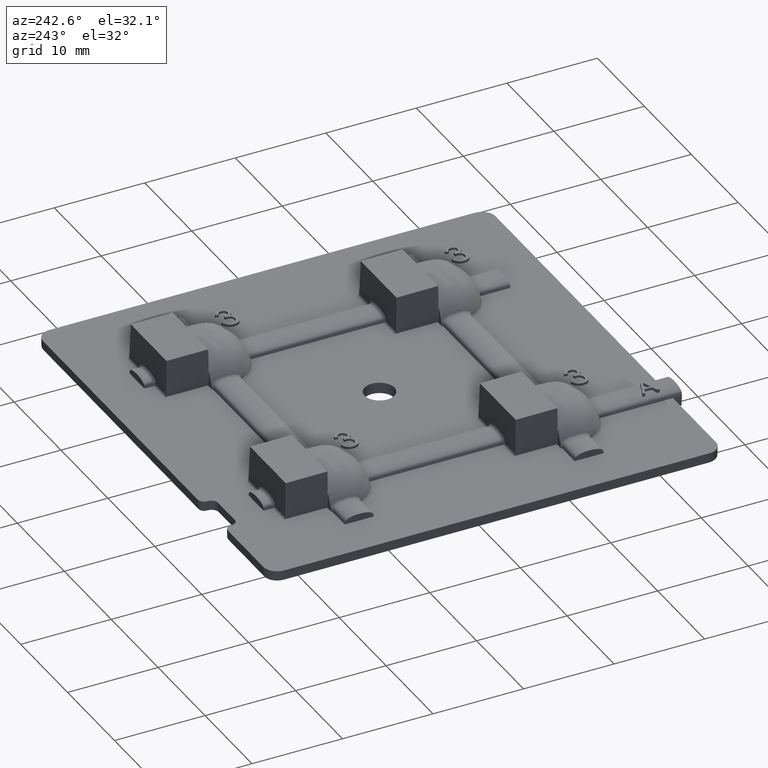
[diagram: clean part render]
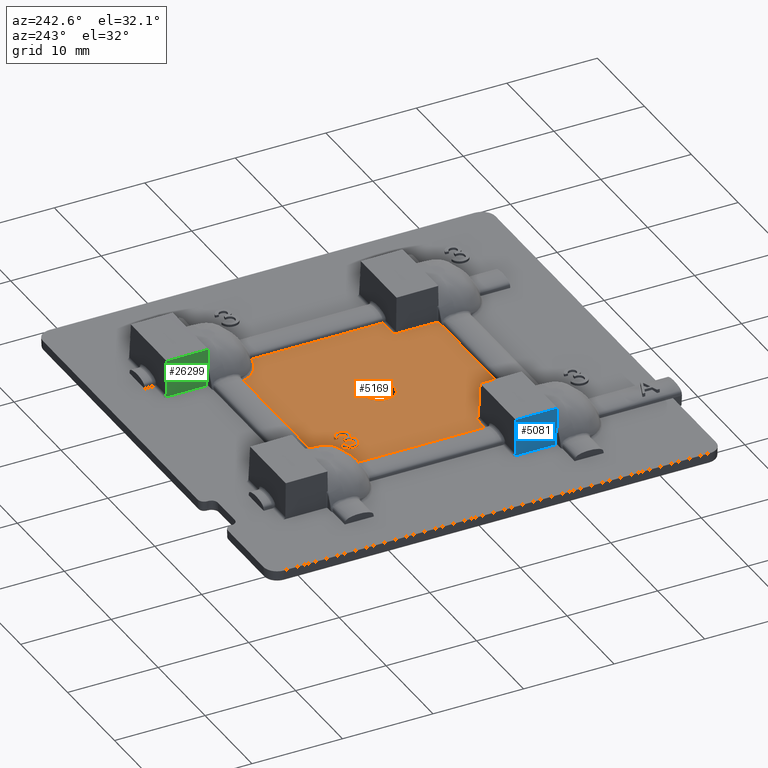
[diagram: same view with three faces highlighted in distinct colors, each labeled with its STEP entity id]
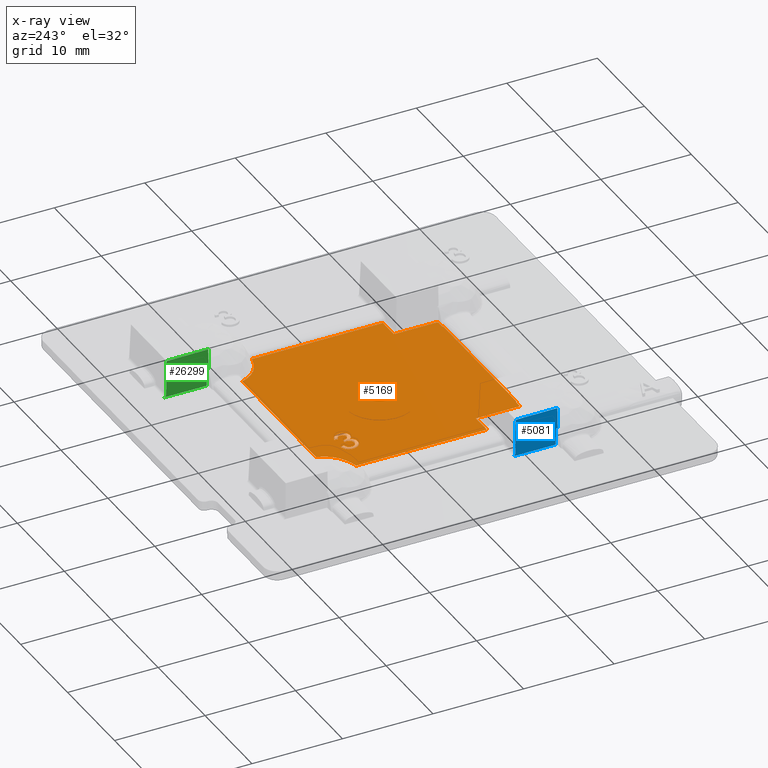
[diagram: x-ray of the same camera — body ghosted, the three highlighted faces saturated]
A machine part, auxiliary view with three faces highlighted in distinct colors.
The next image is the same camera in x-ray (body ghosted, the three faces saturated) — at least one of them is partly hidden behind the body in this view.
Their STEP definitions:

[orange] entity #5169 — the highlighted planar face has unit normal (0, 0, -1).
#36 = CARTESIAN_POINT ( 'NONE',  ( -8.106875266129357300, 7.395647078236210700, 1.200000000000003100 ) ) ;
#91 = VECTOR ( 'NONE', #1633, 1000.000000000000000 ) ;
#121 = CARTESIAN_POINT ( 'NONE',  ( 7.881615589597150700, -11.00908541124927700, 1.200000000000003100 ) ) ;
#122 = CARTESIAN_POINT ( 'NONE',  ( -6.334975961538466600, 7.235576923076917100, 1.200000000000003100 ) ) ;
#130 = CARTESIAN_POINT ( 'NONE',  ( -7.322833397351677000, 8.053976785517894800, 1.200000000000003100 ) ) ;
#173 = CARTESIAN_POINT ( 'NONE',  ( -7.882855763232512900, 11.09501360376888700, 1.200000000000003100 ) ) ;
#204 = AXIS2_PLACEMENT_3D ( 'NONE', #2919, #2887, #2834 ) ;
#448 = ORIENTED_EDGE ( 'NONE', *, *, #9573, .F. ) ;
#564 = CARTESIAN_POINT ( 'NONE',  ( -7.292307692307694800, 8.057692307692297700, 1.200000000000003100 ) ) ;
#654 = CARTESIAN_POINT ( 'NONE',  ( -6.674853156714060100, 6.858009423827239100, 1.200000000000003100 ) ) ;
#658 = CARTESIAN_POINT ( 'NONE',  ( -8.759365308135972600, -6.126760877113143000, 1.200000000000003100 ) ) ;
#667 = CARTESIAN_POINT ( 'NONE',  ( -7.215211821066387400, 6.519614199858966500, 1.200000000000003100 ) ) ;
#673 = EDGE_CURVE ( 'NONE', #9445, #15116, #25517, .T. ) ;
#736 = VECTOR ( 'NONE', #8882, 1000.000000000000000 ) ;
#797 = VERTEX_POINT ( 'NONE', #20066 ) ;
#873 = CARTESIAN_POINT ( 'NONE',  ( -7.256086291497029900, 6.520365488359502100, 1.200000000000003100 ) ) ;
#953 = ORIENTED_EDGE ( 'NONE', *, *, #26378, .T. ) ;
#1023 = LINE ( 'NONE', #22871, #736 ) ;
#1024 = CARTESIAN_POINT ( 'NONE',  ( -7.293130684602137300, 6.136786344237883400, 1.200000000000003100 ) ) ;
#1058 = CARTESIAN_POINT ( 'NONE',  ( -7.823873509016620700, -11.06777911152486200, 1.200000000000003100 ) ) ;
#1096 = CARTESIAN_POINT ( 'NONE',  ( -7.315993659992706500, 6.528583958687103300, 1.200000000000003100 ) ) ;
#1120 = CARTESIAN_POINT ( 'NONE',  ( -8.123396498630690100, 6.919627978423218200, 1.200000000000003100 ) ) ;
#1150 = CARTESIAN_POINT ( 'NONE',  ( -7.879164444525354600, -11.01138519065138300, 1.200000000000003100 ) ) ;
#1202 = CARTESIAN_POINT ( 'NONE',  ( -5.447408926605081800, 7.161996134792989500, 1.200000000000003100 ) ) ;
#1243 = CARTESIAN_POINT ( 'NONE',  ( -7.373294593067806000, 6.541159947311285800, 1.200000000000003100 ) ) ;
#1308 = CARTESIAN_POINT ( 'NONE',  ( -7.722314078114134600, 7.402410852162731200, 1.200000000000003100 ) ) ;
#1364 = ORIENTED_EDGE ( 'NONE', *, *, #673, .T. ) ;
#1416 = CARTESIAN_POINT ( 'NONE',  ( -7.428248277491878300, 6.558338347458569500, 1.200000000000003100 ) ) ;
#1532 = CARTESIAN_POINT ( 'NONE',  ( -7.480169294162907400, 6.581611253755049500, 1.200000000000003100 ) ) ;
#1580 = CARTESIAN_POINT ( 'NONE',  ( -11.09501360376913000, -6.122428483509372300, 1.200000000000003100 ) ) ;
#1633 = DIRECTION ( 'NONE',  ( 1.000000000000000000, -1.224646799147353200E-016, 0.0000000000000000000 ) ) ;
#1644 = VERTEX_POINT ( 'NONE', #10154 ) ;
#1661 = CARTESIAN_POINT ( 'NONE',  ( -6.623637395618289700, 6.366140451728955300, 1.200000000000003100 ) ) ;
#1694 = CARTESIAN_POINT ( 'NONE',  ( 7.759343614991663300, -11.09501360376438400, 1.200000000000003100 ) ) ;
#1725 = CARTESIAN_POINT ( 'NONE',  ( -5.763984353347018100, 6.292288305350859400, 1.200000000000003100 ) ) ;
#1752 = CARTESIAN_POINT ( 'NONE',  ( -6.676923076923079800, 7.330528846153840500, 1.200000000000003100 ) ) ;
#1843 = CARTESIAN_POINT ( 'NONE',  ( -6.233012642261309500, 6.859628119816721700, 1.200000000000003100 ) ) ;
#1902 = CARTESIAN_POINT ( 'NONE',  ( -6.670615663603475900, 7.306758357201684500, 1.200000000000003100 ) ) ;
#1965 = CARTESIAN_POINT ( 'NONE',  ( -5.591780283054615300, 7.495904188524703700, 1.200000000000003100 ) ) ;
#1989 = CARTESIAN_POINT ( 'NONE',  ( -5.696905036453943100, 7.977367858073302300, 1.200000000000003100 ) ) ;
#2073 = LINE ( 'NONE', #25958, #91 ) ;
#2074 = VERTEX_POINT ( 'NONE', #4841 ) ;
#2084 = CARTESIAN_POINT ( 'NONE',  ( -5.101468819031878400, 7.225624232500078600, 1.200000000000003100 ) ) ;
#2112 = CARTESIAN_POINT ( 'NONE',  ( -6.457572115384619900, 6.697716346153837800, 1.200000000000003100 ) ) ;
#2146 = CARTESIAN_POINT ( 'NONE',  ( -6.331906405836459600, 7.280458619924847800, 1.200000000000003100 ) ) ;
#2152 = CARTESIAN_POINT ( 'NONE',  ( -8.047827226570532800, 7.556871839163839000, 1.200000000000003100 ) ) ;
#2205 = CARTESIAN_POINT ( 'NONE',  ( -6.457572115384619900, 6.697716346153837800, 1.200000000000003100 ) ) ;
#2230 = CARTESIAN_POINT ( 'NONE',  ( 7.897735507070907000, -10.99873093733415700, 1.200000000000003100 ) ) ;
#2243 = CARTESIAN_POINT ( 'NONE',  ( -8.697293259568503700, -10.98825353762641700, 1.200000000000003100 ) ) ;
#2321 = VERTEX_POINT ( 'NONE', #24516 ) ;
#2341 = VERTEX_POINT ( 'NONE', #22752 ) ;
#2346 = DIRECTION ( 'NONE',  ( -1.000000000000000000, 1.224646799147353200E-016, 0.0000000000000000000 ) ) ;
#2379 = CARTESIAN_POINT ( 'NONE',  ( -2.199999999999997100, -10.98825353762640800, 1.200000000000003100 ) ) ;
#2428 = ORIENTED_EDGE ( 'NONE', *, *, #20664, .T. ) ;
#2454 = FACE_OUTER_BOUND ( 'NONE', #21810, .T. ) ;
#2533 = AXIS2_PLACEMENT_3D ( 'NONE', #12363, #12336, #12706 ) ;
#2677 = CARTESIAN_POINT ( 'NONE',  ( -7.135591143968434300, 6.520294987566673600, 1.200000000000003100 ) ) ;
#2768 = CARTESIAN_POINT ( 'NONE',  ( -6.644641155611724400, 6.964836614324867400, 1.200000000000003100 ) ) ;
#2829 = EDGE_CURVE ( 'NONE', #14215, #21746, #14496, .T. ) ;
#2834 = DIRECTION ( 'NONE',  ( 1.000000000000000000, 0.0000000000000000000, 0.0000000000000000000 ) ) ;
#2852 = B_SPLINE_CURVE_WITH_KNOTS ( 'NONE', 3,
 ( #24232, #13934, #14199, #1989, #16219, #4087, #18250, #6094, #20266, #8115, #22291, #10200, #24326, #12243, #26377, #14292, #2084, #16302, #4173 ),
 .UNSPECIFIED., .F., .F.,
 ( 4, 1, 1, 1, 1, 1, 1, 1, 1, 1, 1, 1, 1, 1, 1, 1, 4 ),
 ( 0.0000000000000000000, 0.07104220885431597500, 0.1393548851463422300, 0.2049754549053416900, 0.2683538161727914200, 0.3301566144204460800, 0.3906963456467021400, 0.4508988055510681500, 0.5109694912014480800, 0.5707610330540378000, 0.6294527297938351500, 0.6884138447278013200, 0.7475706368932004700, 0.8082828334052714100, 0.8700232702590247100, 0.9338049721129103600, 1.000000000000000000 ),
 .UNSPECIFIED. ) ;
#2885 = CARTESIAN_POINT ( 'NONE',  ( -7.529897312467177500, 6.609223194050339400, 1.200000000000003100 ) ) ;
#2887 = DIRECTION ( 'NONE',  ( 0.0000000000000000000, 0.0000000000000000000, 1.000000000000000000 ) ) ;
#2919 = CARTESIAN_POINT ( 'NONE',  ( 0.0000000000000000000, 0.0000000000000000000, 1.200000000000000000 ) ) ;
#2943 = ORIENTED_EDGE ( 'NONE', *, *, #9900, .T. ) ;
#2951 = CARTESIAN_POINT ( 'NONE',  ( -5.907692307692311600, 7.634615384615375300, 1.200000000000003100 ) ) ;
#3007 = ORIENTED_EDGE ( 'NONE', *, *, #20899, .T. ) ;
#3012 = B_SPLINE_CURVE_WITH_KNOTS ( 'NONE', 3,
 ( #26036, #9855, #1725, #15968, #3817, #17989, #5849, #20005, #7847, #22032, #9947, #24054, #11983, #26122, #14006 ),
 .UNSPECIFIED., .F., .F.,
 ( 4, 1, 1, 1, 1, 1, 1, 1, 1, 1, 1, 1, 4 ),
 ( 0.0000000000000000000, 0.07745619622267108100, 0.1544407780301205700, 0.2321031198185535800, 0.3119771167214991900, 0.3925073160397082300, 0.4735117885199565700, 0.5563808572375982300, 0.6426117248454907800, 0.7306028086505752500, 0.8190256465590213300, 0.9079630737075300400, 1.000000000000000000 ),
 .UNSPECIFIED. ) ;
#3092 = VERTEX_POINT ( 'NONE', #15354 ) ;
#3109 = CARTESIAN_POINT ( 'NONE',  ( -7.576729450685101100, 6.642617594705153100, 1.200000000000003100 ) ) ;
#3128 = CARTESIAN_POINT ( 'NONE',  ( -7.475721905719663800, 6.172716909408470600, 1.200000000000003100 ) ) ;
#3215 = CARTESIAN_POINT ( 'NONE',  ( -8.137673788438906500, 7.089306358123662800, 1.200000000000003100 ) ) ;
#3251 = CARTESIAN_POINT ( 'NONE',  ( -7.872847540525007100, -11.01683506449510800, 1.200000000000003100 ) ) ;
#3343 = CARTESIAN_POINT ( 'NONE',  ( -7.692681006579000800, -11.09501360376889800, 1.200000000000003100 ) ) ;
#3399 = CARTESIAN_POINT ( 'NONE',  ( -7.762402359843615200, 7.316511015655374100, 1.200000000000003100 ) ) ;
#3400 = VERTEX_POINT ( 'NONE', #9164 ) ;
#3489 = DIRECTION ( 'NONE',  ( 1.224646799147353200E-016, 1.000000000000000000, 0.0000000000000000000 ) ) ;
#3562 = ORIENTED_EDGE ( 'NONE', *, *, #2829, .T. ) ;
#3573 = DIRECTION ( 'NONE',  ( 0.9934992729730000000, -0.1138384583614898100, 0.0000000000000000000 ) ) ;
#3667 = B_SPLINE_CURVE_WITH_KNOTS ( 'NONE', 3,
 ( #15485, #1202, #17473, #5372, #19516, #14172, #1965, #16191, #4064, #18220, #6068, #20243, #8091, #22262, #10175 ),
 .UNSPECIFIED., .F., .F.,
 ( 4, 1, 1, 1, 1, 1, 1, 1, 1, 1, 1, 1, 4 ),
 ( 0.0000000000000000000, 0.1277971582348364800, 0.2467952527166548400, 0.3622843155839161100, 0.4776524647273051000, 0.5362368417287134400, 0.5955904355162851000, 0.6563437591396377200, 0.7190851405078752000, 0.7843491651281219200, 0.8528755346365575200, 0.9245512555167001400, 1.000000000000000000 ),
 .UNSPECIFIED. ) ;
#3765 = CARTESIAN_POINT ( 'NONE',  ( -6.711932354779535500, 6.283496860091212900, 1.200000000000003100 ) ) ;
#3817 = CARTESIAN_POINT ( 'NONE',  ( -5.573134321876529500, 6.347155193316404500, 1.200000000000003100 ) ) ;
#3826 = CARTESIAN_POINT ( 'NONE',  ( -7.661360229698627400, 6.722044397086287800, 1.200000000000003100 ) ) ;
#3883 = CARTESIAN_POINT ( 'NONE',  ( -7.696332347662652400, 6.767884398380216400, 1.200000000000003100 ) ) ;
#3901 = ORIENTED_EDGE ( 'NONE', *, *, #20737, .T. ) ;
#3911 = CARTESIAN_POINT ( 'NONE',  ( 7.945171298729110100, -10.98825353762640600, 1.200000000000003100 ) ) ;
#3915 = CARTESIAN_POINT ( 'NONE',  ( -5.446153846153850800, 7.129807692307689000, 1.200000000000003100 ) ) ;
#3928 = CARTESIAN_POINT ( 'NONE',  ( -6.159453680675469800, 6.769599275246941200, 1.200000000000003100 ) ) ;
#3938 = CARTESIAN_POINT ( 'NONE',  ( -5.446402002324237700, 7.113353963965274800, 1.200000000000003100 ) ) ;
#3952 = CARTESIAN_POINT ( 'NONE',  ( -11.09492784097178300, -6.126760877113143000, 1.200000000000003100 ) ) ;
#3995 = CARTESIAN_POINT ( 'NONE',  ( -5.446887982402785200, 7.081131576830001600, 1.200000000000003100 ) ) ;
#4000 = CARTESIAN_POINT ( 'NONE',  ( -5.453568844778343000, 7.034233016054918700, 1.200000000000003100 ) ) ;
#4025 = CARTESIAN_POINT ( 'NONE',  ( -5.461766897471225200, 6.989241143281640600, 1.200000000000003100 ) ) ;
#4054 = CARTESIAN_POINT ( 'NONE',  ( -5.476413017477650400, 6.947189307052434900, 1.200000000000003100 ) ) ;
#4064 = CARTESIAN_POINT ( 'NONE',  ( -5.664344527173688500, 7.550766408511950800, 1.200000000000003100 ) ) ;
#4068 = VERTEX_POINT ( 'NONE', #173 ) ;
#4086 = CARTESIAN_POINT ( 'NONE',  ( -5.492712082913055100, 6.906543459505979100, 1.200000000000003100 ) ) ;
#4087 = CARTESIAN_POINT ( 'NONE',  ( -5.544255847743085200, 7.912838596912854100, 1.200000000000003100 ) ) ;
#4096 = CARTESIAN_POINT ( 'NONE',  ( -5.514084614088219800, 6.868669937827799100, 1.200000000000003100 ) ) ;
#4117 = CARTESIAN_POINT ( 'NONE',  ( -5.538767681947956800, 6.832996720149902000, 1.200000000000003100 ) ) ;
#4118 = CARTESIAN_POINT ( 'NONE',  ( -5.862620192307696600, 6.288461538461531200, 1.200000000000003100 ) ) ;
#4123 = CARTESIAN_POINT ( 'NONE',  ( -5.567037256976805200, 6.800058992680036800, 1.200000000000003100 ) ) ;
#4133 = VERTEX_POINT ( 'NONE', #22675 ) ;
#4142 = CARTESIAN_POINT ( 'NONE',  ( -5.598016390357376100, 6.770002482740285800, 1.200000000000003100 ) ) ;
#4172 = CARTESIAN_POINT ( 'NONE',  ( -5.631788652164828200, 6.744143310541368000, 1.200000000000003100 ) ) ;
#4173 = CARTESIAN_POINT ( 'NONE',  ( -5.100000000000004100, 7.141826923076913600, 1.200000000000000000 ) ) ;
#4179 = CARTESIAN_POINT ( 'NONE',  ( -5.667685804634330400, 6.722270020310224600, 1.200000000000003100 ) ) ;
#4197 = CARTESIAN_POINT ( 'NONE',  ( -5.705331922848250400, 6.704301530886486800, 1.200000000000003100 ) ) ;
#4206 = CARTESIAN_POINT ( 'NONE',  ( -5.745047245539699300, 6.690336986377578100, 1.200000000000003100 ) ) ;
#4227 = CARTESIAN_POINT ( 'NONE',  ( -5.786471070106706800, 6.680112998046706000, 1.200000000000003100 ) ) ;
#4236 = CARTESIAN_POINT ( 'NONE',  ( -6.330769230769236700, 7.290865384615371700, 1.200000000000003100 ) ) ;
#4240 = CARTESIAN_POINT ( 'NONE',  ( -7.958849336419455700, 7.701267290306793400, 1.200000000000003100 ) ) ;
#4320 = CARTESIAN_POINT ( 'NONE',  ( 7.919303537757651900, -10.99143143077637000, 1.200000000000003100 ) ) ;
#4370 = ORIENTED_EDGE ( 'NONE', *, *, #14148, .T. ) ;
#4386 = CARTESIAN_POINT ( 'NONE',  ( -5.875240384615388200, 6.673076923076917100, 1.200000000000003100 ) ) ;
#4435 = CARTESIAN_POINT ( 'NONE',  ( -5.859995458041944400, 6.673360797610054200, 1.200000000000003100 ) ) ;
#4491 = CARTESIAN_POINT ( 'NONE',  ( -5.830180682168243100, 6.673915976117532600, 1.200000000000003100 ) ) ;
#4604 = ORIENTED_EDGE ( 'NONE', *, *, #26400, .T. ) ;
#4772 = CARTESIAN_POINT ( 'NONE',  ( -7.024430740655645900, 6.540201918100157400, 1.200000000000003100 ) ) ;
#4837 = EDGE_CURVE ( 'NONE', #4068, #26257, #19107, .T. ) ;
#4841 = CARTESIAN_POINT ( 'NONE',  ( -7.197355769230771500, 6.134615384615377000, 1.200000000000003100 ) ) ;
#4868 = CARTESIAN_POINT ( 'NONE',  ( -6.636508329545785400, 7.061678211339701000, 1.200000000000003100 ) ) ;
#4895 = CARTESIAN_POINT ( 'NONE',  ( -7.725796157269648700, 6.817008490228762900, 1.200000000000003100 ) ) ;
#5038 = CARTESIAN_POINT ( 'NONE',  ( 11.09501360376913400, -6.122428483509370500, 1.200000000000003100 ) ) ;
#5146 = ORIENTED_EDGE ( 'NONE', *, *, #13575, .T. ) ;
#5169 = ADVANCED_FACE ( 'NONE', ( #7148, #13112, #2454 ), #12419, .F. ) ;
#5207 = CARTESIAN_POINT ( 'NONE',  ( -7.643678235909890300, 6.242576196745352100, 1.200000000000003100 ) ) ;
#5241 = ORIENTED_EDGE ( 'NONE', *, *, #14374, .T. ) ;
#5372 = CARTESIAN_POINT ( 'NONE',  ( -5.472257354403660100, 7.313153174864718900, 1.200000000000003100 ) ) ;
#5378 = CARTESIAN_POINT ( 'NONE',  ( -7.321658417439092400, 7.657998411730707400, 1.200000000000003100 ) ) ;
#5458 = CARTESIAN_POINT ( 'NONE',  ( -7.785467205209332800, 7.218746411868492500, 1.200000000000003100 ) ) ;
#5555 = CARTESIAN_POINT ( 'NONE',  ( -7.750949444355302200, 6.868840767613456900, 1.200000000000003100 ) ) ;
#5584 = EDGE_CURVE ( 'NONE', #15491, #8379, #20679, .T. ) ;
#5594 = VECTOR ( 'NONE', #17043, 1000.000000000000000 ) ;
#5661 = CARTESIAN_POINT ( 'NONE',  ( -7.769463834585529600, 6.924670715188329800, 1.200000000000003100 ) ) ;
#5710 = CARTESIAN_POINT ( 'NONE',  ( -6.457572115384619900, 6.697716346153837800, 1.200000000000003100 ) ) ;
#5791 = CARTESIAN_POINT ( 'NONE',  ( -6.815323537006878300, 6.217982349728330000, 1.200000000000003100 ) ) ;
#5805 = CARTESIAN_POINT ( 'NONE',  ( -7.782320245887340200, 6.983722470604084800, 1.200000000000003100 ) ) ;
#5849 = CARTESIAN_POINT ( 'NONE',  ( -5.398145175418822100, 6.451909097624188400, 1.200000000000003100 ) ) ;
#5893 = CARTESIAN_POINT ( 'NONE',  ( 10.72800253700165600, 8.407020573670381600, 1.200000000000003100 ) ) ;
#5924 = VECTOR ( 'NONE', #23045, 1000.000000000000200 ) ;
#5953 = CARTESIAN_POINT ( 'NONE',  ( -6.079406891041388800, 6.715070792025271900, 1.200000000000003100 ) ) ;
#6057 = CARTESIAN_POINT ( 'NONE',  ( 9.858575595206215100, 8.735566598245624100, 1.199999999999996200 ) ) ;
#6068 = CARTESIAN_POINT ( 'NONE',  ( -5.751421145289141300, 7.593311729288749300, 1.200000000000003100 ) ) ;
#6070 = CARTESIAN_POINT ( 'NONE',  ( -7.792307692307695700, 7.110576923076917100, 1.200000000000003100 ) ) ;
#6094 = CARTESIAN_POINT ( 'NONE',  ( -5.411909450094023900, 7.827906976868717100, 1.200000000000003100 ) ) ;
#6144 = CARTESIAN_POINT ( 'NONE',  ( 11.09501360370766500, -500012.7000000000700, 1.200000000000003100 ) ) ;
#6211 = LINE ( 'NONE', #564, #5924 ) ;
#6253 = CARTESIAN_POINT ( 'NONE',  ( -7.842906059465776500, 7.827285885061135300, 1.200000000000003100 ) ) ;
#6324 = CARTESIAN_POINT ( 'NONE',  ( 7.936483887258420500, -10.98825353762640600, 1.200000000000003100 ) ) ;
#6378 = VERTEX_POINT ( 'NONE', #20994 ) ;
#6530 = ORIENTED_EDGE ( 'NONE', *, *, #20672, .F. ) ;
#6581 = CARTESIAN_POINT ( 'NONE',  ( -6.636057692307698400, 7.081730769230760300, 1.200000000000003100 ) ) ;
#6738 = CARTESIAN_POINT ( 'NONE',  ( -6.923897628980418200, 6.580221660623993600, 1.200000000000003100 ) ) ;
#6743 = EDGE_LOOP ( 'NONE', ( #23355, #8248 ) ) ;
#6871 = VERTEX_POINT ( 'NONE', #10936 ) ;
#7091 = ORIENTED_EDGE ( 'NONE', *, *, #16422, .F. ) ;
#7148 = FACE_BOUND ( 'NONE', #24692, .T. ) ;
#7183 = CARTESIAN_POINT ( 'NONE',  ( -7.795689656248817400, 6.348687759814758600, 1.200000000000003100 ) ) ;
#7320 = VERTEX_POINT ( 'NONE', #3952 ) ;
#7349 = CARTESIAN_POINT ( 'NONE',  ( -7.445119628407677000, 7.618367811878027100, 1.200000000000003100 ) ) ;
#7377 = DIRECTION ( 'NONE',  ( -1.000000000000000000, 1.224646799147353200E-016, 0.0000000000000000000 ) ) ;
#7390 = CARTESIAN_POINT ( 'NONE',  ( -1.650000000000000100, 0.0000000000000000000, 1.200000000000000000 ) ) ;
#7438 = CARTESIAN_POINT ( 'NONE',  ( -7.792012438845197200, 7.129220228545531900, 1.200000000000003100 ) ) ;
#7510 = ORIENTED_EDGE ( 'NONE', *, *, #10338, .T. ) ;
#7624 = LINE ( 'NONE', #14853, #7659 ) ;
#7659 = VECTOR ( 'NONE', #16849, 1000.000000000000000 ) ;
#7685 = ORIENTED_EDGE ( 'NONE', *, *, #14074, .T. ) ;
#7784 = CARTESIAN_POINT ( 'NONE',  ( -6.930897921270856800, 6.170761786796430400, 1.200000000000003100 ) ) ;
#7847 = CARTESIAN_POINT ( 'NONE',  ( -5.256586933592935800, 6.607497492324973200, 1.200000000000003100 ) ) ;
#7866 = CARTESIAN_POINT ( 'NONE',  ( -6.333565767616510900, 7.200423147043260000, 1.200000000000003100 ) ) ;
#7925 = CARTESIAN_POINT ( 'NONE',  ( -6.636536987434441300, 7.099384218747933200, 1.200000000000003100 ) ) ;
#7953 = CARTESIAN_POINT ( 'NONE',  ( -5.984133228419164400, 6.682555190829765100, 1.200000000000003100 ) ) ;
#8076 = CARTESIAN_POINT ( 'NONE',  ( 9.369384920803641500, 9.011111760175019500, 1.199999999999991300 ) ) ;
#8091 = CARTESIAN_POINT ( 'NONE',  ( -5.852589515078318700, 7.624699672579341200, 1.200000000000003100 ) ) ;
#8115 = CARTESIAN_POINT ( 'NONE',  ( -5.300579357977203400, 7.721341979710003600, 1.200000000000003100 ) ) ;
#8143 = CARTESIAN_POINT ( 'NONE',  ( -6.045173083732785300, 6.311964674818124600, 1.200000000000003100 ) ) ;
#8187 = CARTESIAN_POINT ( 'NONE',  ( -8.138461538461541500, 7.124399038461533000, 1.200000000000003100 ) ) ;
#8248 = ORIENTED_EDGE ( 'NONE', *, *, #9442, .F. ) ;
#8264 = CARTESIAN_POINT ( 'NONE',  ( -7.253846153846159200, 7.673076923076918000, 1.200000000000003100 ) ) ;
#8275 = CARTESIAN_POINT ( 'NONE',  ( -7.706840116937916800, 7.927479913763861000, 1.200000000000003100 ) ) ;
#8347 = B_SPLINE_CURVE_WITH_KNOTS ( 'NONE', 3,
 ( #5710, #11567, #9801, #23916, #11823, #25983, #13876, #1661, #15910, #3765, #17918, #5791, #19950, #7784, #21968, #9883, #24001, #11908, #26069 ),
 .UNSPECIFIED., .F., .F.,
 ( 4, 1, 1, 1, 1, 1, 1, 1, 1, 1, 1, 1, 1, 1, 1, 1, 4 ),
 ( 0.0000000000000000000, 0.06580446254848156000, 0.1288917343511520300, 0.1905469756132177600, 0.2511416007260236500, 0.3105737718235803700, 0.3700059429211370900, 0.4296127451425873500, 0.4894260755359248800, 0.5495302842116945900, 0.6104178418508762200, 0.6712359195614087100, 0.7330053478668726600, 0.7967841522549911100, 0.8618753027009659100, 0.9299173053605326300, 1.000000000000000000 ),
 .UNSPECIFIED. ) ;
#8373 = LINE ( 'NONE', #22450, #17904 ) ;
#8379 = VERTEX_POINT ( 'NONE', #21985 ) ;
#8453 = CARTESIAN_POINT ( 'NONE',  ( 8.759365308135977900, -10.83834491357354300, 1.200000000000003100 ) ) ;
#8652 = CARTESIAN_POINT ( 'NONE',  ( -7.791989427192280700, 7.088707995683622100, 1.200000000000003100 ) ) ;
#8669 = CARTESIAN_POINT ( 'NONE',  ( -5.875240384615388200, 6.673076923076917100, 1.200000000000003100 ) ) ;
#8800 = CARTESIAN_POINT ( 'NONE',  ( -6.833897042309598800, 6.640139607521748000, 1.200000000000003100 ) ) ;
#8882 = DIRECTION ( 'NONE',  ( -1.224646799147353200E-016, -1.000000000000000000, 0.0000000000000000000 ) ) ;
#8896 = CARTESIAN_POINT ( 'NONE',  ( -7.791367854895165500, 7.045997944292673200, 1.200000000000003100 ) ) ;
#9015 = VECTOR ( 'NONE', #7377, 1000.000000000000000 ) ;
#9067 = VERTEX_POINT ( 'NONE', #10324 ) ;
#9109 = DIRECTION ( 'NONE',  ( 0.0000000000000000000, 0.0000000000000000000, 1.000000000000000000 ) ) ;
#9155 = CARTESIAN_POINT ( 'NONE',  ( -7.197355769230771500, 6.134615384615377000, 1.200000000000003100 ) ) ;
#9164 = CARTESIAN_POINT ( 'NONE',  ( 11.09492784097178700, -6.126760877113141200, 1.200000000000003100 ) ) ;
#9244 = CARTESIAN_POINT ( 'NONE',  ( -7.929430114491223600, 6.485957410865561100, 1.200000000000003100 ) ) ;
#9352 = CARTESIAN_POINT ( 'NONE',  ( -7.621074662030595800, 6.680109049678865300, 1.200000000000003100 ) ) ;
#9432 = CARTESIAN_POINT ( 'NONE',  ( -7.548442960121228400, 7.569040973757285700, 1.200000000000003100 ) ) ;
#9442 = EDGE_CURVE ( 'NONE', #16022, #10862, #14998, .T. ) ;
#9445 = VERTEX_POINT ( 'NONE', #2951 ) ;
#9546 = ORIENTED_EDGE ( 'NONE', *, *, #20864, .F. ) ;
#9573 = EDGE_CURVE ( 'NONE', #12272, #9067, #14013, .T. ) ;
#9692 = VERTEX_POINT ( 'NONE', #10909 ) ;
#9801 = CARTESIAN_POINT ( 'NONE',  ( -6.473599848661599800, 6.633944303961382800, 1.200000000000003100 ) ) ;
#9802 = CARTESIAN_POINT ( 'NONE',  ( -11.09501360376889200, -6.120261595190372700, 1.200000000000003100 ) ) ;
#9855 = CARTESIAN_POINT ( 'NONE',  ( -5.829674713300290600, 6.289739721620380300, 1.200000000000003100 ) ) ;
#9883 = CARTESIAN_POINT ( 'NONE',  ( -7.058817928769296500, 6.143415419803298900, 1.200000000000003100 ) ) ;
#9900 = EDGE_CURVE ( 'NONE', #9692, #19864, #20274, .T. ) ;
#9947 = CARTESIAN_POINT ( 'NONE',  ( -5.155279142977597000, 6.804027884495762500, 1.200000000000003100 ) ) ;
#9970 = CARTESIAN_POINT ( 'NONE',  ( -6.334975961538466600, 7.235576923076917100, 1.200000000000003100 ) ) ;
#9983 = VERTEX_POINT ( 'NONE', #6581 ) ;
#10055 = CARTESIAN_POINT ( 'NONE',  ( -5.894091041336213100, 6.673739363457445800, 1.200000000000003100 ) ) ;
#10154 = CARTESIAN_POINT ( 'NONE',  ( -6.334975961538466600, 7.235576923076917100, 1.200000000000003100 ) ) ;
#10166 = CARTESIAN_POINT ( 'NONE',  ( 8.786377813120607200, 9.468386889005604000, 1.200000000000003700 ) ) ;
#10175 = CARTESIAN_POINT ( 'NONE',  ( -5.907692307692311600, 7.634615384615375300, 1.200000000000003100 ) ) ;
#10200 = CARTESIAN_POINT ( 'NONE',  ( -5.211692505195579800, 7.597959770374748300, 1.200000000000003100 ) ) ;
#10227 = CARTESIAN_POINT ( 'NONE',  ( -6.211109261529370200, 6.390076372187230000, 1.200000000000003100 ) ) ;
#10261 = CARTESIAN_POINT ( 'NONE',  ( -8.137776059045695100, 7.155878150044672200, 1.200000000000003100 ) ) ;
#10324 = CARTESIAN_POINT ( 'NONE',  ( -8.609456684083108200, -10.98825353762640800, 1.200000000000003100 ) ) ;
#10338 = EDGE_CURVE ( 'NONE', #2341, #4068, #7624, .T. ) ;
#10355 = CARTESIAN_POINT ( 'NONE',  ( -7.553869181930832800, 8.001327612037620400, 1.200000000000003100 ) ) ;
#10364 = ORIENTED_EDGE ( 'NONE', *, *, #14393, .F. ) ;
#10509 = CARTESIAN_POINT ( 'NONE',  ( -7.194350961538465800, 6.519230769230759400, 1.200000000000003100 ) ) ;
#10622 = B_SPLINE_CURVE_WITH_KNOTS ( 'NONE', 3,
 ( #19295, #21401, #23415, #11349, #25493, #13376, #1150, #15444, #3251, #17427 ),
 .UNSPECIFIED., .F., .F.,
 ( 4, 3, 3, 4 ),
 ( 1.734723475976807900E-018, 3.546354607212162600E-005, 7.097808758055796900E-005, 8.340393791072499800E-005 ),
 .UNSPECIFIED. ) ;
#10831 = ORIENTED_EDGE ( 'NONE', *, *, #20931, .T. ) ;
#10862 = VERTEX_POINT ( 'NONE', #7390 ) ;
#10870 = CARTESIAN_POINT ( 'NONE',  ( -6.756198540223111100, 6.717744393392396600, 1.200000000000003100 ) ) ;
#10909 = CARTESIAN_POINT ( 'NONE',  ( -8.138461538461541500, 7.124399038461533000, 1.200000000000003100 ) ) ;
#10936 = CARTESIAN_POINT ( 'NONE',  ( -5.100000000000004100, 7.141826923076913600, 1.200000000000000000 ) ) ;
#10965 = B_SPLINE_CURVE_WITH_KNOTS ( 'NONE', 3,
 ( #25590, #1058, #15529, #3343 ),
 .UNSPECIFIED., .F., .F.,
 ( 4, 4 ),
 ( 0.0000000000000000000, 0.0001966704601675752900 ),
 .UNSPECIFIED. ) ;
#11233 = ORIENTED_EDGE ( 'NONE', *, *, #15739, .T. ) ;
#11316 = CARTESIAN_POINT ( 'NONE',  ( -8.032986284549709300, 6.645466173814240200, 1.200000000000003100 ) ) ;
#11349 = CARTESIAN_POINT ( 'NONE',  ( -7.910191000405637500, -10.99414902650996400, 1.200000000000003100 ) ) ;
#11379 = CARTESIAN_POINT ( 'NONE',  ( -6.676923076923079800, 7.330528846153840500, 1.200000000000003100 ) ) ;
#11486 = CARTESIAN_POINT ( 'NONE',  ( -7.631864257131783600, 7.510083064259997200, 1.200000000000003100 ) ) ;
#11567 = CARTESIAN_POINT ( 'NONE',  ( -6.462989254450289600, 6.676162330056353500, 1.200000000000003100 ) ) ;
#11621 = B_SPLINE_CURVE_WITH_KNOTS ( 'NONE', 3,
 ( #18320, #1694, #24377, #12308 ),
 .UNSPECIFIED., .F., .F.,
 ( 4, 4 ),
 ( 1.114667151271204400E-013, 0.0001960655355007982300 ),
 .UNSPECIFIED. ) ;
#11665 = ORIENTED_EDGE ( 'NONE', *, *, #16491, .T. ) ;
#11722 = VERTEX_POINT ( 'NONE', #15244 ) ;
#11818 = ORIENTED_EDGE ( 'NONE', *, *, #14200, .T. ) ;
#11823 = CARTESIAN_POINT ( 'NONE',  ( -6.520656722428113600, 6.516020432513081500, 1.200000000000003100 ) ) ;
#11908 = CARTESIAN_POINT ( 'NONE',  ( -7.173697643540273300, 6.135053349511726300, 1.200000000000003100 ) ) ;
#11912 = B_SPLINE_CURVE_WITH_KNOTS ( 'NONE', 3,
 ( #24467, #12394, #121, #14437, #2230, #16444, #4320, #18497, #6324, #20507 ),
 .UNSPECIFIED., .F., .F.,
 ( 4, 3, 3, 4 ),
 ( 7.434939516603810500E-005, 9.797140750086933900E-005, 0.0001317753117564727900, 0.0001576811745030978000 ),
 .UNSPECIFIED. ) ;
#11917 = CIRCLE ( 'NONE', #16424, 1.650000000000000100 ) ;
#11983 = CARTESIAN_POINT ( 'NONE',  ( -5.103700488264962600, 7.025697931339423400, 1.200000000000003100 ) ) ;
#12005 = CARTESIAN_POINT ( 'NONE',  ( -6.330783829640345100, 7.131074085874215200, 1.200000000000003100 ) ) ;
#12045 = ORIENTED_EDGE ( 'NONE', *, *, #14108, .T. ) ;
#12055 = CARTESIAN_POINT ( 'NONE',  ( -6.637559557575400500, 7.137047631859804400, 1.200000000000003100 ) ) ;
#12093 =( BOUNDED_CURVE ( )  B_SPLINE_CURVE ( 3, ( #16524, #22354, #20586, #8453 ),
 .UNSPECIFIED., .F., .T. ) 
 B_SPLINE_CURVE_WITH_KNOTS ( ( 4, 4 ),
 ( 5.498396131367734100, 7.067974482991415300 ),
 .UNSPECIFIED. ) 
 CURVE ( )  GEOMETRIC_REPRESENTATION_ITEM ( )  RATIONAL_B_SPLINE_CURVE ( ( 1.000000000000000000, 0.8050248461936579900, 0.8050248461936579900, 1.000000000000000000 ) ) 
 REPRESENTATION_ITEM ( '' )  );
#12199 = CARTESIAN_POINT ( 'NONE',  ( 8.131861863983028000, 10.38997800600117000, 1.200000000000003100 ) ) ;
#12243 = CARTESIAN_POINT ( 'NONE',  ( -5.149128533154439900, 7.459514220498012300, 1.200000000000003100 ) ) ;
#12272 = VERTEX_POINT ( 'NONE', #22860 ) ;
#12276 = CARTESIAN_POINT ( 'NONE',  ( -6.352135728312488200, 6.519676709375612100, 1.200000000000003100 ) ) ;
#12308 = CARTESIAN_POINT ( 'NONE',  ( 7.869966879283959200, -11.01983912666614700, 1.200000000000003100 ) ) ;
#12318 = CARTESIAN_POINT ( 'NONE',  ( -8.125577181729358500, 7.308791411705453100, 1.200000000000003100 ) ) ;
#12326 = VERTEX_POINT ( 'NONE', #12986 ) ;
#12336 = DIRECTION ( 'NONE',  ( 0.0000000000000000000, 0.0000000000000000000, -1.000000000000000000 ) ) ;
#12337 = B_SPLINE_CURVE_WITH_KNOTS ( 'NONE', 3,
 ( #4236, #2146, #24468, #12395, #122 ),
 .UNSPECIFIED., .F., .F.,
 ( 4, 1, 4 ),
 ( 0.0000000000000000000, 0.5660412240200370900, 1.000000000000000000 ),
 .UNSPECIFIED. ) ;
#12363 = CARTESIAN_POINT ( 'NONE',  ( 0.0000000000000000000, 0.0000000000000000000, 1.200000000000000000 ) ) ;
#12394 = CARTESIAN_POINT ( 'NONE',  ( 7.875432624681785400, -11.01415354041633400, 1.200000000000003100 ) ) ;
#12395 = CARTESIAN_POINT ( 'NONE',  ( -6.334655004754309500, 7.243595563585971700, 1.200000000000003100 ) ) ;
#12402 = CARTESIAN_POINT ( 'NONE',  ( -7.383093417571047600, 8.046642067416124500, 1.200000000000003100 ) ) ;
#12408 = CARTESIAN_POINT ( 'NONE',  ( -8.759365308135972600, -10.83834491357354500, 1.200000000000003100 ) ) ;
#12419 = PLANE ( 'NONE',  #2533 ) ;
#12442 =( BOUNDED_CURVE ( )  B_SPLINE_CURVE ( 3, ( #23120, #15127, #5038, #19174 ),
 .UNSPECIFIED., .F., .F. ) 
 B_SPLINE_CURVE_WITH_KNOTS ( ( 4, 4 ),
 ( 0.1460441375637021300, 0.1720335382802225300 ),
 .UNSPECIFIED. ) 
 CURVE ( )  GEOMETRIC_REPRESENTATION_ITEM ( )  RATIONAL_B_SPLINE_CURVE ( ( 1.000000000000000000, 0.9999437133795967500, 0.9999437133795967500, 1.000000000000000000 ) ) 
 REPRESENTATION_ITEM ( '' )  );
#12706 = DIRECTION ( 'NONE',  ( -1.000000000000000000, 0.0000000000000000000, -0.0000000000000000000 ) ) ;
#12734 = B_SPLINE_CURVE_WITH_KNOTS ( 'NONE', 3,
 ( #9970, #7866, #12005, #26140, #14027, #1843, #16073, #3928, #18086, #5953, #20110, #7953, #22135, #10055, #24164 ),
 .UNSPECIFIED., .F., .F.,
 ( 4, 1, 1, 1, 1, 1, 1, 1, 1, 1, 1, 1, 4 ),
 ( 0.0000000000000000000, 0.1291439695827886500, 0.2547667436248096700, 0.3782483602520426700, 0.5034627163055378500, 0.5650122774638289800, 0.6249014079724604100, 0.6836621344857658500, 0.7427540136139001400, 0.8025026920590203600, 0.8652039536626998700, 0.9306959190209057600, 0.9999999999999998900 ),
 .UNSPECIFIED. ) ;
#12823 = CARTESIAN_POINT ( 'NONE',  ( -7.194350961538465800, 6.519230769230759400, 1.200000000000003100 ) ) ;
#12914 = CARTESIAN_POINT ( 'NONE',  ( -6.696999149947580500, 6.808570415937010600, 1.200000000000003100 ) ) ;
#12986 = CARTESIAN_POINT ( 'NONE',  ( -11.09501360376889200, -6.120261595190372700, 1.200000000000003100 ) ) ;
#13112 = FACE_BOUND ( 'NONE', #6743, .T. ) ;
#13167 = ORIENTED_EDGE ( 'NONE', *, *, #5584, .T. ) ;
#13171 = EDGE_CURVE ( 'NONE', #6378, #9067, #17458, .T. ) ;
#13180 = EDGE_CURVE ( 'NONE', #6378, #22313, #25578, .T. ) ;
#13182 = VERTEX_POINT ( 'NONE', #24480 ) ;
#13342 = CARTESIAN_POINT ( 'NONE',  ( -8.101725549902235800, 6.823665634719876700, 1.200000000000003100 ) ) ;
#13376 = CARTESIAN_POINT ( 'NONE',  ( -7.888356835902388100, -11.00393735732703800, 1.200000000000003100 ) ) ;
#13514 = ORIENTED_EDGE ( 'NONE', *, *, #20823, .T. ) ;
#13522 = CARTESIAN_POINT ( 'NONE',  ( -7.696166970566371100, 7.440868436042528300, 1.200000000000003100 ) ) ;
#13575 = EDGE_CURVE ( 'NONE', #11722, #2341, #23280, .T. ) ;
#13589 =( BOUNDED_CURVE ( )  B_SPLINE_CURVE ( 3, ( #9802, #1580, #25984, #13879 ),
 .UNSPECIFIED., .F., .F. ) 
 B_SPLINE_CURVE_WITH_KNOTS ( ( 4, 4 ),
 ( 2.969559115309595000, 2.995548516026115500 ),
 .UNSPECIFIED. ) 
 CURVE ( )  GEOMETRIC_REPRESENTATION_ITEM ( )  RATIONAL_B_SPLINE_CURVE ( ( 1.000000000000000000, 0.9999437133795967500, 0.9999437133795967500, 1.000000000000000000 ) ) 
 REPRESENTATION_ITEM ( '' )  );
#13609 = EDGE_CURVE ( 'NONE', #797, #11722, #15771, .T. ) ;
#13616 = CARTESIAN_POINT ( 'NONE',  ( -11.09501360383012500, -500012.7000000000700, 1.200000000000003100 ) ) ;
#13876 = CARTESIAN_POINT ( 'NONE',  ( -6.584621376111852200, 6.412143315767028900, 1.200000000000003100 ) ) ;
#13879 = CARTESIAN_POINT ( 'NONE',  ( -11.09492784097178300, -6.126760877113143000, 1.200000000000003100 ) ) ;
#13889 = EDGE_CURVE ( 'NONE', #8379, #9445, #3667, .T. ) ;
#13918 = LINE ( 'NONE', #13616, #22738 ) ;
#13934 = CARTESIAN_POINT ( 'NONE',  ( -5.839491874827216700, 8.013214250683406100, 1.200000000000003100 ) ) ;
#13955 = CARTESIAN_POINT ( 'NONE',  ( -7.792307692307695700, 7.110576923076917100, 1.200000000000003100 ) ) ;
#13985 = EDGE_CURVE ( 'NONE', #19379, #1644, #12337, .T. ) ;
#14006 = CARTESIAN_POINT ( 'NONE',  ( -5.100000000000004100, 7.141826923076913600, 1.200000000000000000 ) ) ;
#14013 = LINE ( 'NONE', #2379, #14046 ) ;
#14027 = CARTESIAN_POINT ( 'NONE',  ( -6.273064298954230900, 6.934408052237013300, 1.200000000000003100 ) ) ;
#14046 = VECTOR ( 'NONE', #2346, 1000.000000000000000 ) ;
#14066 = EDGE_CURVE ( 'NONE', #21746, #9983, #21822, .T. ) ;
#14074 = EDGE_CURVE ( 'NONE', #19864, #22861, #6211, .T. ) ;
#14098 = CARTESIAN_POINT ( 'NONE',  ( -6.658653586554000200, 7.261677369807779700, 1.200000000000003100 ) ) ;
#14108 = EDGE_CURVE ( 'NONE', #2074, #9692, #18009, .T. ) ;
#14148 = EDGE_CURVE ( 'NONE', #22861, #14215, #17797, .T. ) ;
#14172 = CARTESIAN_POINT ( 'NONE',  ( -5.551096816457240700, 7.453506969066204100, 1.200000000000003100 ) ) ;
#14179 = VERTEX_POINT ( 'NONE', #25726 ) ;
#14199 = CARTESIAN_POINT ( 'NONE',  ( -5.781156692393828700, 8.001412375929380300, 1.200000000000003100 ) ) ;
#14200 = EDGE_CURVE ( 'NONE', #25488, #2074, #8347, .T. ) ;
#14215 = VERTEX_POINT ( 'NONE', #13955 ) ;
#14237 = EDGE_CURVE ( 'NONE', #14179, #25488, #22364, .T. ) ;
#14254 = CARTESIAN_POINT ( 'NONE',  ( 7.882855683879091300, 11.09501360376889100, 1.200000000000003100 ) ) ;
#14281 = CARTESIAN_POINT ( 'NONE',  ( -8.759365308135977900, -10.92618148905894100, 1.200000000000003100 ) ) ;
#14292 = CARTESIAN_POINT ( 'NONE',  ( -5.111536544286778400, 7.306992007340518600, 1.200000000000003100 ) ) ;
#14317 = CARTESIAN_POINT ( 'NONE',  ( -6.441793501080931100, 6.665582974872752000, 1.200000000000003100 ) ) ;
#14356 = CARTESIAN_POINT ( 'NONE',  ( -8.081046096592936900, 7.478389124774154500, 1.200000000000003100 ) ) ;
#14374 = EDGE_CURVE ( 'NONE', #7320, #22313, #2073, .T. ) ;
#14393 = EDGE_CURVE ( 'NONE', #14179, #6871, #3012, .T. ) ;
#14403 = EDGE_CURVE ( 'NONE', #15116, #6871, #2852, .T. ) ;
#14408 = B_SPLINE_CURVE_WITH_KNOTS ( 'NONE', 3,
 ( #22111, #7925, #12055, #26201, #14098, #1902, #16133 ),
 .UNSPECIFIED., .F., .F.,
 ( 4, 1, 1, 1, 4 ),
 ( 0.0000000000000000000, 0.2093977625857013400, 0.4467474999317966900, 0.7082787400881849200, 1.000000000000000000 ),
 .UNSPECIFIED. ) ;
#14437 = CARTESIAN_POINT ( 'NONE',  ( 7.888251283332057700, -11.00482303721425700, 1.200000000000003100 ) ) ;
#14447 = CARTESIAN_POINT ( 'NONE',  ( -7.292307692307694800, 8.057692307692297700, 1.200000000000003100 ) ) ;
#14452 = CARTESIAN_POINT ( 'NONE',  ( -8.759365308135972600, -12.70000000000000500, 1.200000000000003100 ) ) ;
#14455 = LINE ( 'NONE', #17515, #9015 ) ;
#14496 = B_SPLINE_CURVE_WITH_KNOTS ( 'NONE', 3,
 ( #6070, #8652, #8896, #5805, #5661, #5555, #4895, #3883, #3826, #9352, #3109, #2885, #1532, #1416, #1243, #1096, #873, #667, #26387 ),
 .UNSPECIFIED., .F., .F.,
 ( 4, 1, 1, 1, 1, 1, 1, 1, 1, 1, 1, 1, 1, 1, 1, 1, 4 ),
 ( 0.0000000000000000000, 0.06945660146576296300, 0.1356488576093701200, 0.1996072199859660900, 0.2614281420011505500, 0.3220970204207955200, 0.3823803551340469500, 0.4432594092864676800, 0.5049621518609261900, 0.5668486316061066600, 0.6276243567848870400, 0.6874959659819600600, 0.7473675751790327400, 0.8081866532359602800, 0.8701418939385503500, 0.9337250934245917600, 0.9999999999999998900 ),
 .UNSPECIFIED. ) ;
#14795 = VECTOR ( 'NONE', #22346, 1000.000000000000000 ) ;
#14840 = VERTEX_POINT ( 'NONE', #25584 ) ;
#14853 = CARTESIAN_POINT ( 'NONE',  ( 500012.7000000000700, 11.09501360370765400, 1.200000000000003100 ) ) ;
#14952 = CARTESIAN_POINT ( 'NONE',  ( -6.657274815310098700, 6.910114038291666800, 1.200000000000003100 ) ) ;
#14998 = CIRCLE ( 'NONE', #204, 1.650000000000000100 ) ;
#15116 = VERTEX_POINT ( 'NONE', #21266 ) ;
#15127 = CARTESIAN_POINT ( 'NONE',  ( 11.09498501456090700, -6.124595032764695200, 1.200000000000003100 ) ) ;
#15244 = CARTESIAN_POINT ( 'NONE',  ( 11.09501360376889100, 8.330888513744589800, 1.200000000000003100 ) ) ;
#15315 = CARTESIAN_POINT ( 'NONE',  ( -7.386380266247077700, 6.150423583658613000, 1.200000000000003100 ) ) ;
#15354 = CARTESIAN_POINT ( 'NONE',  ( 8.609456684083118800, -10.98825353762640600, 1.200000000000003100 ) ) ;
#15407 = CARTESIAN_POINT ( 'NONE',  ( -8.136128985032451400, 7.020488471015318600, 1.200000000000003100 ) ) ;
#15444 = CARTESIAN_POINT ( 'NONE',  ( -7.875927989058574500, -11.01400742243956500, 1.200000000000003100 ) ) ;
#15485 = CARTESIAN_POINT ( 'NONE',  ( -5.446153846153850800, 7.129807692307689000, 1.200000000000003100 ) ) ;
#15491 = VERTEX_POINT ( 'NONE', #8669 ) ;
#15495 = CARTESIAN_POINT ( 'NONE',  ( -7.253846153846159200, 7.673076923076918000, 1.200000000000003100 ) ) ;
#15529 = CARTESIAN_POINT ( 'NONE',  ( -7.759173180591722600, -11.09501360376216400, 1.200000000000003100 ) ) ;
#15579 = CARTESIAN_POINT ( 'NONE',  ( -7.743604317462716900, 7.360611353799302300, 1.200000000000003100 ) ) ;
#15739 = EDGE_CURVE ( 'NONE', #9983, #25674, #14408, .T. ) ;
#15771 = LINE ( 'NONE', #6144, #14795 ) ;
#15910 = CARTESIAN_POINT ( 'NONE',  ( -6.665384295372843900, 6.322456829718860600, 1.200000000000003100 ) ) ;
#15968 = CARTESIAN_POINT ( 'NONE',  ( -5.666926303482387800, 6.312704959944209500, 1.200000000000003100 ) ) ;
#16022 = VERTEX_POINT ( 'NONE', #25669 ) ;
#16064 = CARTESIAN_POINT ( 'NONE',  ( -6.330769230769236700, 7.290865384615371700, 1.200000000000003100 ) ) ;
#16073 = CARTESIAN_POINT ( 'NONE',  ( -6.192948087616570300, 6.805673865444724400, 1.200000000000003100 ) ) ;
#16133 = CARTESIAN_POINT ( 'NONE',  ( -6.676923076923079800, 7.330528846153840500, 1.200000000000003100 ) ) ;
#16141 = CARTESIAN_POINT ( 'NONE',  ( -11.09501360376890000, 8.330888299024984200, 1.200000000000003100 ) ) ;
#16159 = CARTESIAN_POINT ( 'NONE',  ( -10.72796699036795300, 8.407027690636486000, 1.200000000000003100 ) ) ;
#16165 = CARTESIAN_POINT ( 'NONE',  ( -10.37077431380051400, 8.513949168458518500, 1.200000000000003100 ) ) ;
#16184 = CARTESIAN_POINT ( 'NONE',  ( -9.683218052904734900, 8.811601818056091800, 1.200000000000003300 ) ) ;
#16191 = CARTESIAN_POINT ( 'NONE',  ( -5.626264212492501700, 7.524863735175694400, 1.200000000000003100 ) ) ;
#16217 = CARTESIAN_POINT ( 'NONE',  ( -9.360696724831093700, 8.999046018976518000, 1.200000000000225100 ) ) ;
#16219 = CARTESIAN_POINT ( 'NONE',  ( -5.617815806375669600, 7.948046822813765300, 1.200000000000003100 ) ) ;
#16226 = CARTESIAN_POINT ( 'NONE',  ( -8.928128094686865500, 9.352691584070431200, 1.200000000000225100 ) ) ;
#16245 = CARTESIAN_POINT ( 'NONE',  ( -8.791531204161938000, 9.483703136640999200, 1.200000000000003100 ) ) ;
#16253 = CARTESIAN_POINT ( 'NONE',  ( -8.542355851104803200, 9.765455823178927000, 1.200000000000002400 ) ) ;
#16270 = CARTESIAN_POINT ( 'NONE',  ( -8.430903193965221500, 9.914508439895069400, 1.200000000000003700 ) ) ;
#16301 = CARTESIAN_POINT ( 'NONE',  ( -8.134748490413299400, 10.38544702118708300, 1.200000000000004000 ) ) ;
#16302 = CARTESIAN_POINT ( 'NONE',  ( -5.100495629533796200, 7.170102987385043000, 1.200000000000003100 ) ) ;
#16351 = CARTESIAN_POINT ( 'NONE',  ( -7.882855763232512900, 11.09501360376888700, 1.200000000000003100 ) ) ;
#16366 = CARTESIAN_POINT ( 'NONE',  ( -8.007504797238572900, 7.631385426965047200, 1.200000000000003100 ) ) ;
#16382 = CARTESIAN_POINT ( 'NONE',  ( -7.987459231267979300, 10.73408446872140600, 1.200000000000003300 ) ) ;
#16422 = EDGE_CURVE ( 'NONE', #12326, #26257, #13918, .T. ) ;
#16424 = AXIS2_PLACEMENT_3D ( 'NONE', #21229, #9109, #23260 ) ;
#16444 = CARTESIAN_POINT ( 'NONE',  ( 7.908368037240756500, -10.99416620852285000, 1.200000000000003100 ) ) ;
#16457 = CARTESIAN_POINT ( 'NONE',  ( -8.609456684083108200, -10.98825353762640800, 1.200000000000003100 ) ) ;
#16491 = EDGE_CURVE ( 'NONE', #12326, #7320, #13589, .T. ) ;
#16524 = CARTESIAN_POINT ( 'NONE',  ( 8.609456684083118800, -10.98825353762640600, 1.200000000000003100 ) ) ;
#16691 = ORIENTED_EDGE ( 'NONE', *, *, #14237, .T. ) ;
#16849 = DIRECTION ( 'NONE',  ( -1.000000000000000000, 1.224646799147353200E-016, 0.0000000000000000000 ) ) ;
#16867 = CARTESIAN_POINT ( 'NONE',  ( -7.078799762648683800, 6.528823157238242900, 1.200000000000003100 ) ) ;
#16957 = CARTESIAN_POINT ( 'NONE',  ( -6.637390129207928700, 7.022439690243731800, 1.200000000000003100 ) ) ;
#17043 = DIRECTION ( 'NONE',  ( 1.000000000000000000, -1.224646799147353200E-016, 0.0000000000000000000 ) ) ;
#17282 = VERTEX_POINT ( 'NONE', #3911 ) ;
#17321 = CARTESIAN_POINT ( 'NONE',  ( -7.561477884317509000, 6.203543254305912100, 1.200000000000003100 ) ) ;
#17400 = CARTESIAN_POINT ( 'NONE',  ( -8.138461538461541500, 7.124399038461533000, 1.200000000000003100 ) ) ;
#17427 = CARTESIAN_POINT ( 'NONE',  ( -7.869960775528809900, -11.01983795167235100, 1.200000000000003100 ) ) ;
#17458 =( BOUNDED_CURVE ( )  B_SPLINE_CURVE ( 3, ( #12408, #14281, #2243, #16457 ),
 .UNSPECIFIED., .F., .T. ) 
 B_SPLINE_CURVE_WITH_KNOTS ( ( 4, 4 ),
 ( 5.498396131367757200, 7.067974482991485500 ),
 .UNSPECIFIED. ) 
 CURVE ( )  GEOMETRIC_REPRESENTATION_ITEM ( )  RATIONAL_B_SPLINE_CURVE ( ( 1.000000000000000000, 0.8050248461936468900, 0.8050248461936468900, 1.000000000000000000 ) ) 
 REPRESENTATION_ITEM ( '' )  );
#17473 = CARTESIAN_POINT ( 'NONE',  ( -5.449832672965484000, 7.224156787717043400, 1.200000000000003100 ) ) ;
#17480 = CARTESIAN_POINT ( 'NONE',  ( -7.276951427307432500, 7.667939310651312300, 1.200000000000003100 ) ) ;
#17515 = CARTESIAN_POINT ( 'NONE',  ( 500012.7000000000700, -11.09501360383013200, 1.200000000000003100 ) ) ;
#17568 = CARTESIAN_POINT ( 'NONE',  ( -7.774749377658881000, 7.268765959751639200, 1.200000000000003100 ) ) ;
#17797 = B_SPLINE_CURVE_WITH_KNOTS ( 'NONE', 3,
 ( #15495, #17480, #5378, #19525, #7349, #21543, #9432, #23562, #11486, #25645, #13522, #1308, #15579, #3399, #17568, #5458, #19606, #7438, #21628 ),
 .UNSPECIFIED., .F., .F.,
 ( 4, 1, 1, 1, 1, 1, 1, 1, 1, 1, 1, 1, 1, 1, 1, 1, 4 ),
 ( 0.0000000000000000000, 0.08255396078518491300, 0.1597357900281240500, 0.2331191426939336600, 0.3016677542672412400, 0.3657572055548024600, 0.4264331607509307400, 0.4841724850757688200, 0.5395279894987197200, 0.5931262957056696600, 0.6470108735677884100, 0.7014006585895331500, 0.7565572882568614200, 0.8138678545440801700, 0.8730772030430984400, 0.9349724568179591500, 1.000000000000000000 ),
 .UNSPECIFIED. ) ;
#17835 = CARTESIAN_POINT ( 'NONE',  ( -5.893764852177473500, 6.289754667378834300, 1.200000000000003100 ) ) ;
#17904 = VECTOR ( 'NONE', #24556, 1000.000000000000000 ) ;
#17918 = CARTESIAN_POINT ( 'NONE',  ( -6.761981289337748900, 6.248469804486900300, 1.200000000000003100 ) ) ;
#17989 = CARTESIAN_POINT ( 'NONE',  ( -5.482530627061544600, 6.392867313878298300, 1.200000000000003100 ) ) ;
#18009 = B_SPLINE_CURVE_WITH_KNOTS ( 'NONE', 3,
 ( #9155, #21273, #1024, #15315, #3128, #17321, #5207, #19346, #7183, #21363, #9244, #23386, #11316, #25459, #13342, #1120, #15407, #3215, #17400 ),
 .UNSPECIFIED., .F., .F.,
 ( 4, 1, 1, 1, 1, 1, 1, 1, 1, 1, 1, 1, 1, 1, 1, 1, 4 ),
 ( 0.0000000000000000000, 0.06350453625022196800, 0.1248067922028610500, 0.1849234681287574600, 0.2443804145998968700, 0.3037798743377922400, 0.3635961592214639300, 0.4248401249863786300, 0.4878537026835098600, 0.5515047880584247300, 0.6138531752476542600, 0.6756348551984138200, 0.7377324277930087400, 0.8004136732792585000, 0.8646560725551931700, 0.9309833332427830400, 0.9999999999999998900 ),
 .UNSPECIFIED. ) ;
#18086 = CARTESIAN_POINT ( 'NONE',  ( -6.120826366529625400, 6.740245228553532400, 1.200000000000003100 ) ) ;
#18113 = ORIENTED_EDGE ( 'NONE', *, *, #13171, .T. ) ;
#18205 = CARTESIAN_POINT ( 'NONE',  ( 10.37166064966705600, 8.513810175056194800, 1.199999999999996400 ) ) ;
#18220 = CARTESIAN_POINT ( 'NONE',  ( -5.706007653482170200, 7.573685621486723600, 1.200000000000003100 ) ) ;
#18250 = CARTESIAN_POINT ( 'NONE',  ( -5.475329609608152700, 7.873421319956410300, 1.200000000000003100 ) ) ;
#18320 = CARTESIAN_POINT ( 'NONE',  ( 7.692686800003413000, -11.09501360376889600, 1.200000000000003100 ) ) ;
#18410 = CARTESIAN_POINT ( 'NONE',  ( -7.903902729920392100, 7.767206865770811300, 1.200000000000003100 ) ) ;
#18497 = CARTESIAN_POINT ( 'NONE',  ( 7.927731401136971300, -10.98932376929489000, 1.200000000000003100 ) ) ;
#18601 = ORIENTED_EDGE ( 'NONE', *, *, #14066, .T. ) ;
#18681 = ORIENTED_EDGE ( 'NONE', *, *, #13985, .T. ) ;
#18916 = CARTESIAN_POINT ( 'NONE',  ( -6.973045035282184200, 6.558110552818057200, 1.200000000000003100 ) ) ;
#19005 = CARTESIAN_POINT ( 'NONE',  ( -6.636057692307698400, 7.081730769230760300, 1.200000000000003100 ) ) ;
#19107 = B_SPLINE_CURVE_WITH_KNOTS ( 'NONE', 3,
 ( #16351, #16382, #16301, #16270, #16253, #16245, #16226, #16217, #16184, #16165, #16159, #16141 ),
 .UNSPECIFIED., .F., .F.,
 ( 4, 2, 2, 2, 2, 4 ),
 ( 5.459655224344910000E-014, 0.001125683831149839000, 0.001688525746697463800, 0.002251367662245088800, 0.003377051493340338900, 0.004502735324435590300 ),
 .UNSPECIFIED. ) ;
#19174 = CARTESIAN_POINT ( 'NONE',  ( 11.09501360376889600, -6.120261595190370900, 1.200000000000003100 ) ) ;
#19201 = ORIENTED_EDGE ( 'NONE', *, *, #13889, .T. ) ;
#19295 = CARTESIAN_POINT ( 'NONE',  ( -7.945161077769484800, -10.98825353762640800, 1.200000000000003100 ) ) ;
#19346 = CARTESIAN_POINT ( 'NONE',  ( -7.721711774586359500, 6.291177718715717400, 1.200000000000003100 ) ) ;
#19379 = VERTEX_POINT ( 'NONE', #16064 ) ;
#19515 = VERTEX_POINT ( 'NONE', #20459 ) ;
#19516 = CARTESIAN_POINT ( 'NONE',  ( -5.508543406927274500, 7.393799970047316700, 1.200000000000003100 ) ) ;
#19525 = CARTESIAN_POINT ( 'NONE',  ( -7.385782569478180000, 7.639047772353645600, 1.200000000000003100 ) ) ;
#19606 = CARTESIAN_POINT ( 'NONE',  ( -7.791436153882891300, 7.165608816500860500, 1.200000000000003100 ) ) ;
#19783 = EDGE_CURVE ( 'NONE', #10862, #16022, #11917, .T. ) ;
#19864 = VERTEX_POINT ( 'NONE', #23524 ) ;
#19950 = CARTESIAN_POINT ( 'NONE',  ( -6.871571302306513500, 6.191909580014660200, 1.200000000000003100 ) ) ;
#20005 = CARTESIAN_POINT ( 'NONE',  ( -5.322263521323308500, 6.523450126565691700, 1.200000000000003100 ) ) ;
#20066 = CARTESIAN_POINT ( 'NONE',  ( 11.09501360376889600, -6.120261595190370900, 1.200000000000003100 ) ) ;
#20110 = CARTESIAN_POINT ( 'NONE',  ( -6.033400090991576400, 6.696642451424446000, 1.200000000000003100 ) ) ;
#20232 = CARTESIAN_POINT ( 'NONE',  ( 9.690016797329439800, 8.820547010681167400, 1.199999999999991300 ) ) ;
#20243 = CARTESIAN_POINT ( 'NONE',  ( -5.800022397027662500, 7.611004120366953200, 1.200000000000003100 ) ) ;
#20266 = CARTESIAN_POINT ( 'NONE',  ( -5.353306789221578700, 7.777464601773111500, 1.200000000000003100 ) ) ;
#20274 = B_SPLINE_CURVE_WITH_KNOTS ( 'NONE', 3,
 ( #8187, #10261, #24389, #12318, #36, #14356, #2152, #16366, #4240, #18410, #6253, #20425, #8275, #22461, #10355, #24474, #12402, #130, #14447 ),
 .UNSPECIFIED., .F., .F.,
 ( 4, 1, 1, 1, 1, 1, 1, 1, 1, 1, 1, 1, 1, 1, 1, 1, 4 ),
 ( 0.0000000000000000000, 0.06778605041676794000, 0.1333952342465268600, 0.1969464128107680000, 0.2588972289528085900, 0.3197980194082235500, 0.3802278156116881100, 0.4410230653179170700, 0.5028927014869250000, 0.5648239840273008300, 0.6252029334931004100, 0.6856327296965646400, 0.7460625259000291900, 0.8073608920514098200, 0.8693117081934504900, 0.9337976948254393900, 1.000000000000000000 ),
 .UNSPECIFIED. ) ;
#20292 = CARTESIAN_POINT ( 'NONE',  ( -5.955258490737393600, 6.292307888463431800, 1.200000000000003100 ) ) ;
#20298 = DIRECTION ( 'NONE',  ( 0.09950371902099881800, 0.9950371902099891500, 0.0000000000000000000 ) ) ;
#20425 = CARTESIAN_POINT ( 'NONE',  ( -7.777692717316132800, 7.881830182096535100, 1.200000000000003100 ) ) ;
#20459 = CARTESIAN_POINT ( 'NONE',  ( 7.692686800003413000, -11.09501360376889600, 1.200000000000003100 ) ) ;
#20507 = CARTESIAN_POINT ( 'NONE',  ( 7.945171298729110100, -10.98825353762640600, 1.200000000000003100 ) ) ;
#20518 = DIRECTION ( 'NONE',  ( 1.224646799147353200E-016, 1.000000000000000000, 0.0000000000000000000 ) ) ;
#20586 = CARTESIAN_POINT ( 'NONE',  ( 8.759365308135981500, -10.92618148905893700, 1.200000000000003300 ) ) ;
#20636 = EDGE_CURVE ( 'NONE', #12272, #13182, #10622, .T. ) ;
#20664 = EDGE_CURVE ( 'NONE', #13182, #4133, #10965, .T. ) ;
#20672 = EDGE_CURVE ( 'NONE', #19515, #4133, #14455, .T. ) ;
#20679 = B_SPLINE_CURVE_WITH_KNOTS ( 'NONE', 3,
 ( #4386, #4435, #4491, #4227, #4206, #4197, #4179, #4172, #4142, #4123, #4117, #4096, #4086, #4054, #4025, #4000, #3995, #3938, #3915 ),
 .UNSPECIFIED., .F., .F.,
 ( 4, 1, 1, 1, 1, 1, 1, 1, 1, 1, 1, 1, 1, 1, 1, 1, 4 ),
 ( 0.0000000000000000000, 0.06505463913602534100, 0.1272285226197129900, 0.1880101438087943300, 0.2469835454742400600, 0.3066659727845301200, 0.3657818598972587500, 0.4261710453590831800, 0.4878724760734957600, 0.5497514992996227500, 0.6112034382739595100, 0.6728455577848978500, 0.7349546921179244100, 0.7979758693229818100, 0.8625564745858542700, 0.9298171665527528200, 1.000000000000000000 ),
 .UNSPECIFIED. ) ;
#20737 = EDGE_CURVE ( 'NONE', #19515, #2321, #11621, .T. ) ;
#20772 = ORIENTED_EDGE ( 'NONE', *, *, #20776, .T. ) ;
#20776 = EDGE_CURVE ( 'NONE', #2321, #17282, #11912, .T. ) ;
#20784 = EDGE_CURVE ( 'NONE', #3092, #17282, #8373, .T. ) ;
#20823 = EDGE_CURVE ( 'NONE', #3092, #22408, #12093, .T. ) ;
#20864 = EDGE_CURVE ( 'NONE', #14840, #22408, #1023, .T. ) ;
#20899 = EDGE_CURVE ( 'NONE', #14840, #3400, #22636, .T. ) ;
#20930 = CARTESIAN_POINT ( 'NONE',  ( -6.877870162436377800, 6.608108360253873500, 1.200000000000003100 ) ) ;
#20931 = EDGE_CURVE ( 'NONE', #3400, #797, #12442, .T. ) ;
#20994 = CARTESIAN_POINT ( 'NONE',  ( -8.759365308135972600, -10.83834491357354500, 1.200000000000003100 ) ) ;
#21229 = CARTESIAN_POINT ( 'NONE',  ( 0.0000000000000000000, 0.0000000000000000000, 1.200000000000000000 ) ) ;
#21266 = CARTESIAN_POINT ( 'NONE',  ( -5.869230769230775900, 8.019230769230761200, 1.200000000000003100 ) ) ;
#21273 = CARTESIAN_POINT ( 'NONE',  ( -7.229654100058904300, 6.135347500867634800, 1.200000000000003100 ) ) ;
#21363 = CARTESIAN_POINT ( 'NONE',  ( -7.865806083281707800, 6.413768940045107700, 1.200000000000003100 ) ) ;
#21401 = CARTESIAN_POINT ( 'NONE',  ( -7.933339895745444200, -10.98825353762641300, 1.200000000000003100 ) ) ;
#21543 = CARTESIAN_POINT ( 'NONE',  ( -7.499417678391375300, 7.594992162466017900, 1.200000000000003100 ) ) ;
#21628 = CARTESIAN_POINT ( 'NONE',  ( -7.792307692307695700, 7.110576923076917100, 1.200000000000003100 ) ) ;
#21746 = VERTEX_POINT ( 'NONE', #10509 ) ;
#21810 = EDGE_LOOP ( 'NONE', ( #21842, #5146, #7510, #24504, #7091, #11665, #5241, #25860, #18113, #448, #22414, #2428, #6530, #3901, #20772, #25015, #13514, #9546, #3007, #10831 ) ) ;
#21822 = B_SPLINE_CURVE_WITH_KNOTS ( 'NONE', 3,
 ( #12823, #24729, #2677, #16867, #4772, #18916, #6738, #20930, #8800, #22954, #10870, #24992, #12914, #654, #14952, #2768, #16957, #4868, #19005 ),
 .UNSPECIFIED., .F., .F.,
 ( 4, 1, 1, 1, 1, 1, 1, 1, 1, 1, 1, 1, 1, 1, 1, 1, 4 ),
 ( 0.0000000000000000000, 0.06705906849163628700, 0.1312849360638185800, 0.1936839294531499100, 0.2544690426430550300, 0.3147395315700032800, 0.3754454655322416200, 0.4359548907264964600, 0.4982363164308174500, 0.5605177421351370500, 0.6215735474205271700, 0.6819351712114154500, 0.7428219349666531600, 0.8042479941570496200, 0.8674565928158581900, 0.9322646656550104300, 1.000000000000000000 ),
 .UNSPECIFIED. ) ;
#21842 = ORIENTED_EDGE ( 'NONE', *, *, #13609, .T. ) ;
#21968 = CARTESIAN_POINT ( 'NONE',  ( -6.993282130614300500, 6.154681982706324400, 1.200000000000003100 ) ) ;
#21985 = CARTESIAN_POINT ( 'NONE',  ( -5.446153846153850800, 7.129807692307689000, 1.200000000000003100 ) ) ;
#22032 = CARTESIAN_POINT ( 'NONE',  ( -5.200376307147539700, 6.701516987134965600, 1.200000000000003100 ) ) ;
#22111 = CARTESIAN_POINT ( 'NONE',  ( -6.636057692307698400, 7.081730769230760300, 1.200000000000003100 ) ) ;
#22135 = CARTESIAN_POINT ( 'NONE',  ( -5.930755462261083200, 6.675027806258611900, 1.200000000000003100 ) ) ;
#22168 = CARTESIAN_POINT ( 'NONE',  ( 11.09501360376889100, 8.330888513744589800, 1.200000000000003100 ) ) ;
#22250 = CARTESIAN_POINT ( 'NONE',  ( 9.216934840602235100, 9.116675377732246200, 1.200000000000004000 ) ) ;
#22262 = CARTESIAN_POINT ( 'NONE',  ( -5.889013345731379800, 7.631254117442687800, 1.200000000000003100 ) ) ;
#22291 = CARTESIAN_POINT ( 'NONE',  ( -5.253184396271107600, 7.661526141376721300, 1.200000000000003100 ) ) ;
#22313 = VERTEX_POINT ( 'NONE', #658 ) ;
#22320 = CARTESIAN_POINT ( 'NONE',  ( -6.130357049767922300, 6.345180733152346900, 1.200000000000003100 ) ) ;
#22346 = DIRECTION ( 'NONE',  ( 1.224646799147353200E-016, 1.000000000000000000, 0.0000000000000000000 ) ) ;
#22354 = CARTESIAN_POINT ( 'NONE',  ( 8.697293259568510800, -10.98825353762641100, 1.200000000000003300 ) ) ;
#22364 = B_SPLINE_CURVE_WITH_KNOTS ( 'NONE', 3,
 ( #4118, #17835, #20292, #8143, #22320, #10227, #24350, #12276, #26405, #14317, #2112 ),
 .UNSPECIFIED., .F., .F.,
 ( 4, 1, 1, 1, 1, 1, 1, 1, 4 ),
 ( 0.0000000000000000000, 0.1219512022493430000, 0.2407868053279240400, 0.3585498723707454300, 0.4790658414002771400, 0.6015185447735337300, 0.7275505189308985000, 0.8599320866628449300, 1.000000000000000000 ),
 .UNSPECIFIED. ) ;
#22408 = VERTEX_POINT ( 'NONE', #23829 ) ;
#22414 = ORIENTED_EDGE ( 'NONE', *, *, #20636, .T. ) ;
#22450 = CARTESIAN_POINT ( 'NONE',  ( 23.20000000000000300, -10.98825353762640600, 1.200000000000003100 ) ) ;
#22461 = CARTESIAN_POINT ( 'NONE',  ( -7.632795027405617100, 7.968554978904012200, 1.200000000000003100 ) ) ;
#22636 = LINE ( 'NONE', #25078, #5594 ) ;
#22675 = CARTESIAN_POINT ( 'NONE',  ( -7.692681006579000800, -11.09501360376889800, 1.200000000000003100 ) ) ;
#22738 = VECTOR ( 'NONE', #3489, 1000.000000000000000 ) ;
#22752 = CARTESIAN_POINT ( 'NONE',  ( 7.882855683879091300, 11.09501360376889100, 1.200000000000003100 ) ) ;
#22810 = LINE ( 'NONE', #1752, #25692 ) ;
#22860 = CARTESIAN_POINT ( 'NONE',  ( -7.945161077769484800, -10.98825353762640800, 1.200000000000003100 ) ) ;
#22861 = VERTEX_POINT ( 'NONE', #8264 ) ;
#22871 = CARTESIAN_POINT ( 'NONE',  ( 8.759365308135977900, -12.70000000000000300, 1.200000000000003100 ) ) ;
#22954 = CARTESIAN_POINT ( 'NONE',  ( -6.793607281250397800, 6.677378426869887900, 1.200000000000003100 ) ) ;
#23045 = DIRECTION ( 'NONE',  ( 0.09950371902099858200, -0.9950371902099891500, 0.0000000000000000000 ) ) ;
#23120 = CARTESIAN_POINT ( 'NONE',  ( 11.09492784097178700, -6.126760877113141200, 1.200000000000003100 ) ) ;
#23260 = DIRECTION ( 'NONE',  ( 1.000000000000000000, 0.0000000000000000000, 0.0000000000000000000 ) ) ;
#23273 = VECTOR ( 'NONE', #20298, 1000.000000000000000 ) ;
#23280 = B_SPLINE_CURVE_WITH_KNOTS ( 'NONE', 3,
 ( #22168, #5893, #18205, #6057, #20232, #8076, #22250, #10166, #24290, #12199, #26336, #14254 ),
 .UNSPECIFIED., .F., .F.,
 ( 4, 2, 2, 2, 2, 4 ),
 ( 3.598806709383927200E-014, 0.001114931014532030100, 0.001672396521780054500, 0.002229862029028079000, 0.003344793043524130900, 0.004459724058020182400 ),
 .UNSPECIFIED. ) ;
#23355 = ORIENTED_EDGE ( 'NONE', *, *, #19783, .F. ) ;
#23386 = CARTESIAN_POINT ( 'NONE',  ( -7.985966417417725600, 6.563076563086970500, 1.200000000000003100 ) ) ;
#23415 = CARTESIAN_POINT ( 'NONE',  ( -7.921354048682211200, -10.99025972096522200, 1.200000000000003100 ) ) ;
#23524 = CARTESIAN_POINT ( 'NONE',  ( -7.292307692307694800, 8.057692307692297700, 1.200000000000003100 ) ) ;
#23562 = CARTESIAN_POINT ( 'NONE',  ( -7.592562896171766200, 7.540804007666105600, 1.200000000000003100 ) ) ;
#23829 = CARTESIAN_POINT ( 'NONE',  ( 8.759365308135977900, -10.83834491357354300, 1.200000000000003100 ) ) ;
#23916 = CARTESIAN_POINT ( 'NONE',  ( -6.495958629916212400, 6.573568407905041200, 1.200000000000003100 ) ) ;
#24001 = CARTESIAN_POINT ( 'NONE',  ( -7.127070277591032600, 6.135916526492108500, 1.200000000000003100 ) ) ;
#24054 = CARTESIAN_POINT ( 'NONE',  ( -5.123859314464962000, 6.912602133685555600, 1.200000000000003100 ) ) ;
#24164 = CARTESIAN_POINT ( 'NONE',  ( -5.875240384615388200, 6.673076923076917100, 1.200000000000003100 ) ) ;
#24232 = CARTESIAN_POINT ( 'NONE',  ( -5.869230769230775900, 8.019230769230761200, 1.200000000000003100 ) ) ;
#24290 = CARTESIAN_POINT ( 'NONE',  ( 8.532813036382844300, 9.752513044889774100, 1.200000000000002600 ) ) ;
#24326 = CARTESIAN_POINT ( 'NONE',  ( -5.177748244704107000, 7.530390473382522200, 1.200000000000003100 ) ) ;
#24350 = CARTESIAN_POINT ( 'NONE',  ( -6.285683385994015100, 6.448295000544200100, 1.200000000000003100 ) ) ;
#24377 = CARTESIAN_POINT ( 'NONE',  ( 7.823758219561259600, -11.06790637116032400, 1.200000000000003100 ) ) ;
#24389 = CARTESIAN_POINT ( 'NONE',  ( -8.136427113551954800, 7.217825459818413100, 1.200000000000003100 ) ) ;
#24467 = CARTESIAN_POINT ( 'NONE',  ( 7.869966879283959200, -11.01983912666614700, 1.200000000000003100 ) ) ;
#24468 = CARTESIAN_POINT ( 'NONE',  ( -6.333915402741571800, 7.262073448935670900, 1.200000000000003100 ) ) ;
#24474 = CARTESIAN_POINT ( 'NONE',  ( -7.470592088462031400, 8.027365530911563200, 1.200000000000003100 ) ) ;
#24480 = CARTESIAN_POINT ( 'NONE',  ( -7.869960775528809900, -11.01983795167235100, 1.200000000000003100 ) ) ;
#24504 = ORIENTED_EDGE ( 'NONE', *, *, #4837, .T. ) ;
#24516 = CARTESIAN_POINT ( 'NONE',  ( 7.869966879283959200, -11.01983912666614700, 1.200000000000003100 ) ) ;
#24556 = DIRECTION ( 'NONE',  ( -1.000000000000000000, 1.224646799147353200E-016, 0.0000000000000000000 ) ) ;
#24692 = EDGE_LOOP ( 'NONE', ( #26284, #10364, #16691, #11818, #12045, #2943, #7685, #4370, #3562, #18601, #11233, #953, #18681, #4604, #13167, #19201, #1364 ) ) ;
#24729 = CARTESIAN_POINT ( 'NONE',  ( -7.174484575156806300, 6.519590575872955500, 1.200000000000003100 ) ) ;
#24992 = CARTESIAN_POINT ( 'NONE',  ( -6.724430217934916200, 6.762009763165346000, 1.200000000000003100 ) ) ;
#25015 = ORIENTED_EDGE ( 'NONE', *, *, #20784, .F. ) ;
#25078 = CARTESIAN_POINT ( 'NONE',  ( 11.09501360376889800, -6.126760877113141200, 1.200000000000003100 ) ) ;
#25214 = CARTESIAN_POINT ( 'NONE',  ( -5.907692307692311600, 7.634615384615375300, 1.200000000000003100 ) ) ;
#25459 = CARTESIAN_POINT ( 'NONE',  ( -8.071515759305102100, 6.732285203644872600, 1.200000000000003100 ) ) ;
#25488 = VERTEX_POINT ( 'NONE', #2205 ) ;
#25493 = CARTESIAN_POINT ( 'NONE',  ( -7.899018771774668900, -10.99804153057202800, 1.200000000000003100 ) ) ;
#25517 = LINE ( 'NONE', #25214, #23273 ) ;
#25547 = CARTESIAN_POINT ( 'NONE',  ( -11.09501360376890000, 8.330888299024984200, 1.200000000000003100 ) ) ;
#25578 = LINE ( 'NONE', #14452, #26194 ) ;
#25584 = CARTESIAN_POINT ( 'NONE',  ( 8.759365308135977900, -6.126760877113141200, 1.200000000000003100 ) ) ;
#25590 = CARTESIAN_POINT ( 'NONE',  ( -7.869960775528809900, -11.01983795167235100, 1.200000000000003100 ) ) ;
#25645 = CARTESIAN_POINT ( 'NONE',  ( -7.666440951035958100, 7.476953562145869400, 1.200000000000003100 ) ) ;
#25669 = CARTESIAN_POINT ( 'NONE',  ( 1.650000000000000100, 2.020667218593133000E-016, 1.200000000000000000 ) ) ;
#25674 = VERTEX_POINT ( 'NONE', #11379 ) ;
#25692 = VECTOR ( 'NONE', #3573, 999.9999999999998900 ) ;
#25726 = CARTESIAN_POINT ( 'NONE',  ( -5.862620192307696600, 6.288461538461531200, 1.200000000000003100 ) ) ;
#25860 = ORIENTED_EDGE ( 'NONE', *, *, #13180, .F. ) ;
#25958 = CARTESIAN_POINT ( 'NONE',  ( -8.759365308135972600, -6.126760877113143000, 1.200000000000003100 ) ) ;
#25983 = CARTESIAN_POINT ( 'NONE',  ( -6.551160067718810400, 6.462732427063969900, 1.200000000000003100 ) ) ;
#25984 = CARTESIAN_POINT ( 'NONE',  ( -11.09498501456090100, -6.124595032764697000, 1.200000000000003100 ) ) ;
#26036 = CARTESIAN_POINT ( 'NONE',  ( -5.862620192307696600, 6.288461538461531200, 1.200000000000003100 ) ) ;
#26069 = CARTESIAN_POINT ( 'NONE',  ( -7.197355769230771500, 6.134615384615377000, 1.200000000000003100 ) ) ;
#26122 = CARTESIAN_POINT ( 'NONE',  ( -5.101247499978836000, 7.102677788054370100, 1.200000000000003100 ) ) ;
#26140 = CARTESIAN_POINT ( 'NONE',  ( -6.309429798664924100, 7.029805846392612500, 1.200000000000003100 ) ) ;
#26194 = VECTOR ( 'NONE', #20518, 1000.000000000000000 ) ;
#26201 = CARTESIAN_POINT ( 'NONE',  ( -6.646151538356265000, 7.196213127003508300, 1.200000000000003100 ) ) ;
#26257 = VERTEX_POINT ( 'NONE', #25547 ) ;
#26284 = ORIENTED_EDGE ( 'NONE', *, *, #14403, .T. ) ;
#26336 = CARTESIAN_POINT ( 'NONE',  ( 7.987480514236195500, 10.73401077090946200, 1.200000000000003300 ) ) ;
#26377 = CARTESIAN_POINT ( 'NONE',  ( -5.126927340656714600, 7.385078641572864200, 1.200000000000003100 ) ) ;
#26378 = EDGE_CURVE ( 'NONE', #25674, #19379, #22810, .T. ) ;
#26387 = CARTESIAN_POINT ( 'NONE',  ( -7.194350961538465800, 6.519230769230759400, 1.200000000000003100 ) ) ;
#26400 = EDGE_CURVE ( 'NONE', #1644, #15491, #12734, .T. ) ;
#26405 = CARTESIAN_POINT ( 'NONE',  ( -6.411102137323109900, 6.603079578327824000, 1.200000000000003100 ) ) ;

[blue] entity #5081 — the highlighted planar face has unit normal (0.9994, -0, -0.0349).
#233 = VECTOR ( 'NONE', #26364, 1000.000000000000200 ) ;
#292 = ORIENTED_EDGE ( 'NONE', *, *, #7357, .T. ) ;
#960 = VERTEX_POINT ( 'NONE', #20627 ) ;
#979 = FACE_OUTER_BOUND ( 'NONE', #3558, .T. ) ;
#990 = ORIENTED_EDGE ( 'NONE', *, *, #13757, .T. ) ;
#1107 = ORIENTED_EDGE ( 'NONE', *, *, #13159, .T. ) ;
#1573 = LINE ( 'NONE', #22276, #233 ) ;
#1657 = VECTOR ( 'NONE', #3265, 1000.000000000000200 ) ;
#2452 = LINE ( 'NONE', #3257, #1657 ) ;
#2667 = CARTESIAN_POINT ( 'NONE',  ( -16.57766067152521900, -10.92956291365033100, 3.003339996665382200 ) ) ;
#2693 = AXIS2_PLACEMENT_3D ( 'NONE', #13111, #12881, #12876 ) ;
#2841 = CARTESIAN_POINT ( 'NONE',  ( -16.64063469186402200, -6.269571829794857700, 1.200000000000003300 ) ) ;
#3242 = ORIENTED_EDGE ( 'NONE', *, *, #13724, .T. ) ;
#3257 = CARTESIAN_POINT ( 'NONE',  ( -16.20537900466293700, -11.10000000000000700, 13.66409210151860900 ) ) ;
#3265 = DIRECTION ( 'NONE',  ( 0.03489949670250429300, -4.273955692857548600E-018, 0.9993908270190955400 ) ) ;
#3558 = EDGE_LOOP ( 'NONE', ( #18438, #3242, #18879, #11129, #292, #1107, #15029, #13041, #990 ) ) ;
#3861 = VECTOR ( 'NONE', #22265, 1000.000000000000000 ) ;
#3971 = CARTESIAN_POINT ( 'NONE',  ( -16.49957615918558300, -6.496402180999173700, 5.238879226568172100 ) ) ;
#3981 = CARTESIAN_POINT ( 'NONE',  ( -16.49933249257252400, -7.373206579503193600, 5.246365568343789800 ) ) ;
#4008 = CARTESIAN_POINT ( 'NONE',  ( -16.49922112951407600, -8.250042250991693700, 5.249554589092087800 ) ) ;
#4042 = CARTESIAN_POINT ( 'NONE',  ( -16.49902077655919500, -9.126859842637740500, 5.255291947053975400 ) ) ;
#4047 = CARTESIAN_POINT ( 'NONE',  ( -16.49887048705821600, -9.784581503780778200, 5.259595675269762800 ) ) ;
#4070 = CARTESIAN_POINT ( 'NONE',  ( -16.49869657963836300, -10.44230125191616700, 5.264575732192420300 ) ) ;
#4130 = CARTESIAN_POINT ( 'NONE',  ( -16.49829722239202200, -11.09999923118901300, 5.271616364205780100 ) ) ;
#4340 = B_SPLINE_CURVE_WITH_KNOTS ( 'NONE', 3,
 ( #10857, #2667, #4853, #18997 ),
 .UNSPECIFIED., .F., .F.,
 ( 4, 4 ),
 ( -2.452040321862260500E-006, 0.0001093824190961620800 ),
 .UNSPECIFIED. ) ;
#4853 = CARTESIAN_POINT ( 'NONE',  ( -16.57720938281220000, -10.96662240740258600, 3.016263214555033700 ) ) ;
#5081 = ADVANCED_FACE ( 'NONE', ( #979 ), #12899, .F. ) ;
#5449 = VERTEX_POINT ( 'NONE', #5818 ) ;
#5818 = CARTESIAN_POINT ( 'NONE',  ( -16.64063469186401900, -6.126760877113143000, 1.200000000000003100 ) ) ;
#6071 = CARTESIAN_POINT ( 'NONE',  ( -16.49829722239202200, -11.09999923118901300, 5.271616364205780100 ) ) ;
#6335 = DIRECTION ( 'NONE',  ( -1.224646799147353200E-016, -1.000000000000000000, 0.0000000000000000000 ) ) ;
#7318 = EDGE_CURVE ( 'NONE', #25182, #15188, #10328, .T. ) ;
#7357 = EDGE_CURVE ( 'NONE', #24816, #960, #2452, .T. ) ;
#7980 = EDGE_CURVE ( 'NONE', #14092, #24816, #24777, .T. ) ;
#8043 = VERTEX_POINT ( 'NONE', #25740 ) ;
#8272 = CARTESIAN_POINT ( 'NONE',  ( -16.19885266480340700, -6.768063520027250300, 13.85098202274642400 ) ) ;
#8701 = LINE ( 'NONE', #20515, #24222 ) ;
#10328 = B_SPLINE_CURVE_WITH_KNOTS ( 'NONE', 3,
 ( #4130, #4070, #4047, #4042, #4008, #3981, #3971 ),
 .UNSPECIFIED., .F., .F.,
 ( 4, 3, 4 ),
 ( 4.336808689942017700E-019, 0.001973207275934851600, 0.004603712864690814900 ),
 .UNSPECIFIED. ) ;
#10857 = CARTESIAN_POINT ( 'NONE',  ( -16.57847558875422700, -10.90050401668333500, 2.980003820490774400 ) ) ;
#11129 = ORIENTED_EDGE ( 'NONE', *, *, #7980, .T. ) ;
#11295 = CARTESIAN_POINT ( 'NONE',  ( -16.57847558875422700, -10.90050401668333500, 2.980003820490774400 ) ) ;
#12581 = VECTOR ( 'NONE', #24983, 1000.000000000000200 ) ;
#12876 = DIRECTION ( 'NONE',  ( -0.03489949670250429300, 4.273955692857548600E-018, -0.9993908270190955400 ) ) ;
#12881 = DIRECTION ( 'NONE',  ( 0.9993908270190956500, -1.223900777406161700E-016, -0.03489949670250430000 ) ) ;
#12899 = PLANE ( 'NONE',  #2693 ) ;
#12988 = CARTESIAN_POINT ( 'NONE',  ( -16.63217974898156000, -6.376636590772777800, 1.442117885874626900 ) ) ;
#13041 = ORIENTED_EDGE ( 'NONE', *, *, #25206, .F. ) ;
#13111 = CARTESIAN_POINT ( 'NONE',  ( -16.20537900466293700, -12.70000000000000500, 13.66409210151860900 ) ) ;
#13159 = EDGE_CURVE ( 'NONE', #960, #25182, #1573, .T. ) ;
#13724 = EDGE_CURVE ( 'NONE', #8043, #18027, #15474, .T. ) ;
#13729 = EDGE_CURVE ( 'NONE', #18027, #14092, #4340, .T. ) ;
#13757 = EDGE_CURVE ( 'NONE', #15586, #5449, #17353, .T. ) ;
#14092 = VERTEX_POINT ( 'NONE', #19263 ) ;
#15029 = ORIENTED_EDGE ( 'NONE', *, *, #7318, .T. ) ;
#15188 = VERTEX_POINT ( 'NONE', #24175 ) ;
#15306 = LINE ( 'NONE', #8272, #3861 ) ;
#15474 = LINE ( 'NONE', #22944, #12581 ) ;
#15586 = VERTEX_POINT ( 'NONE', #19398 ) ;
#16396 = CARTESIAN_POINT ( 'NONE',  ( -16.57720938291365400, -11.10000000000000000, 3.016263214441322400 ) ) ;
#16943 = CARTESIAN_POINT ( 'NONE',  ( -16.63716433804316000, -6.372133981863219000, 1.299377930995600000 ) ) ;
#17036 = CARTESIAN_POINT ( 'NONE',  ( -16.64063469186401900, -6.126760877113143000, 1.200000000000003100 ) ) ;
#17353 =( BOUNDED_CURVE ( )  B_SPLINE_CURVE ( 3, ( #12988, #16943, #2841, #17036 ),
 .UNSPECIFIED., .F., .T. ) 
 B_SPLINE_CURVE_WITH_KNOTS ( ( 4, 4 ),
 ( 4.743922662667367600, 6.283185307179586200 ),
 .UNSPECIFIED. ) 
 CURVE ( )  GEOMETRIC_REPRESENTATION_ITEM ( )  RATIONAL_B_SPLINE_CURVE ( ( 1.000000000000000000, 0.8121115135893091100, 0.8121115135893091100, 1.000000000000000000 ) ) 
 REPRESENTATION_ITEM ( '' )  );
#18027 = VERTEX_POINT ( 'NONE', #11295 ) ;
#18438 = ORIENTED_EDGE ( 'NONE', *, *, #20145, .T. ) ;
#18879 = ORIENTED_EDGE ( 'NONE', *, *, #13729, .T. ) ;
#18997 = CARTESIAN_POINT ( 'NONE',  ( -16.57720938281218900, -11.00436109436495300, 3.016263214555402700 ) ) ;
#19263 = CARTESIAN_POINT ( 'NONE',  ( -16.57720938281218900, -11.00436109436495300, 3.016263214555402700 ) ) ;
#19398 = CARTESIAN_POINT ( 'NONE',  ( -16.63217974898156000, -6.376636590772777800, 1.442117885874626900 ) ) ;
#20145 = EDGE_CURVE ( 'NONE', #5449, #8043, #8701, .T. ) ;
#20515 = CARTESIAN_POINT ( 'NONE',  ( -16.64063469186401900, -12.70000000000000500, 1.200000000000003100 ) ) ;
#20627 = CARTESIAN_POINT ( 'NONE',  ( -16.52888822949042000, -11.10000000000000700, 4.400000000000004800 ) ) ;
#22265 = DIRECTION ( 'NONE',  ( 0.03488216769587905400, -0.03150926929211728800, 0.9988945891962341900 ) ) ;
#22276 = CARTESIAN_POINT ( 'NONE',  ( -16.20537900466293700, -11.10000000000000700, 13.66409210151860900 ) ) ;
#22944 = CARTESIAN_POINT ( 'NONE',  ( -16.20364379947628200, -11.27533580596124800, 13.71378187674143900 ) ) ;
#24175 = CARTESIAN_POINT ( 'NONE',  ( -16.49957615918558300, -6.496402180999173700, 5.238879226568172100 ) ) ;
#24222 = VECTOR ( 'NONE', #6335, 1000.000000000000000 ) ;
#24772 = VECTOR ( 'NONE', #25940, 1000.000000000000000 ) ;
#24777 = LINE ( 'NONE', #26080, #24772 ) ;
#24816 = VERTEX_POINT ( 'NONE', #16396 ) ;
#24983 = DIRECTION ( 'NONE',  ( 0.03487826274237793700, -0.03487826274237469000, 0.9987827659587180700 ) ) ;
#25182 = VERTEX_POINT ( 'NONE', #6071 ) ;
#25206 = EDGE_CURVE ( 'NONE', #15586, #15188, #15306, .T. ) ;
#25740 = CARTESIAN_POINT ( 'NONE',  ( -16.64063469186401900, -10.83834491357354500, 1.200000000000003100 ) ) ;
#25940 = DIRECTION ( 'NONE',  ( -1.224646799147353200E-016, -1.000000000000000000, -1.457912856127801100E-017 ) ) ;
#26080 = CARTESIAN_POINT ( 'NONE',  ( -16.57720938281218900, -11.05167884667823800, 3.016263214555402700 ) ) ;
#26364 = DIRECTION ( 'NONE',  ( 0.03489949670250429300, -4.273955692857548600E-018, 0.9993908270190955400 ) ) ;

[green] entity #26299 — the highlighted planar face has unit normal (0.9994, -0, -0.0349).
#396 = LINE ( 'NONE', #21563, #15461 ) ;
#1306 = EDGE_CURVE ( 'NONE', #16058, #3379, #7434, .T. ) ;
#1480 = AXIS2_PLACEMENT_3D ( 'NONE', #9426, #3395, #17562 ) ;
#1624 = CARTESIAN_POINT ( 'NONE',  ( 8.901702777607967600, 14.30000076881098700, 5.271616364205780100 ) ) ;
#1805 = VECTOR ( 'NONE', #9524, 1000.000000000000000 ) ;
#1894 = CARTESIAN_POINT ( 'NONE',  ( 8.900979223440796100, 16.27314015736226000, 5.255291947053975400 ) ) ;
#2004 = ORIENTED_EDGE ( 'NONE', *, *, #20857, .T. ) ;
#2309 = ORIENTED_EDGE ( 'NONE', *, *, #8351, .T. ) ;
#2333 = VECTOR ( 'NONE', #10430, 1000.000000000000200 ) ;
#2528 = CARTESIAN_POINT ( 'NONE',  ( 8.759365308135970800, 19.27323912288685600, 1.200000000000003100 ) ) ;
#2561 = CARTESIAN_POINT ( 'NONE',  ( 8.767820251018429500, 19.02336340922722300, 1.442117885874626900 ) ) ;
#2637 = CARTESIAN_POINT ( 'NONE',  ( 8.762835661956835100, 19.02786601813678000, 1.299377930995600000 ) ) ;
#2704 = CARTESIAN_POINT ( 'NONE',  ( 8.759365308135970800, 19.13042817020514300, 1.200000000000003300 ) ) ;
#3379 = VERTEX_POINT ( 'NONE', #8815 ) ;
#3395 = DIRECTION ( 'NONE',  ( 0.9993908270190956500, -1.223900777406161700E-016, -0.03489949670250430000 ) ) ;
#3419 = DIRECTION ( 'NONE',  ( -1.224646799147353200E-016, -1.000000000000000000, -1.457912856127801100E-017 ) ) ;
#3982 = CARTESIAN_POINT ( 'NONE',  ( 8.900667507427465700, 18.02679342049680900, 5.246365568343789800 ) ) ;
#4860 = VERTEX_POINT ( 'NONE', #16053 ) ;
#4863 = CARTESIAN_POINT ( 'NONE',  ( 9.194620995337055900, 14.29999999999999400, 13.66409210151860900 ) ) ;
#5262 = EDGE_CURVE ( 'NONE', #17032, #18084, #20028, .T. ) ;
#5362 = CARTESIAN_POINT ( 'NONE',  ( 8.822790617187806100, 14.39563890563504800, 3.016263214555402700 ) ) ;
#5708 = EDGE_CURVE ( 'NONE', #16058, #25029, #17763, .T. ) ;
#6060 = VERTEX_POINT ( 'NONE', #24181 ) ;
#6462 = VECTOR ( 'NONE', #24905, 1000.000000000000200 ) ;
#6698 = ORIENTED_EDGE ( 'NONE', *, *, #5262, .T. ) ;
#7147 = CARTESIAN_POINT ( 'NONE',  ( 8.822790617187806100, 14.39563890563504800, 3.016263214555402700 ) ) ;
#7210 = CARTESIAN_POINT ( 'NONE',  ( 8.821524411245766500, 14.49949598331666500, 2.980003820490774400 ) ) ;
#7238 = CARTESIAN_POINT ( 'NONE',  ( 8.822339328474777500, 14.47043708634966900, 3.003339996665382200 ) ) ;
#7242 = CARTESIAN_POINT ( 'NONE',  ( 8.822790617187793700, 14.43337759259741500, 3.016263214555033700 ) ) ;
#7404 = VECTOR ( 'NONE', #22994, 1000.000000000000000 ) ;
#7434 = LINE ( 'NONE', #23928, #7404 ) ;
#7725 = LINE ( 'NONE', #8354, #2333 ) ;
#8351 = EDGE_CURVE ( 'NONE', #14821, #23302, #23472, .T. ) ;
#8354 = CARTESIAN_POINT ( 'NONE',  ( 9.196356200523709400, 14.12466419403875200, 13.71378187674143900 ) ) ;
#8815 = CARTESIAN_POINT ( 'NONE',  ( 8.900423840814408300, 18.90359781900082600, 5.238879226568172100 ) ) ;
#9426 = CARTESIAN_POINT ( 'NONE',  ( 9.194620995337055900, 12.69999999999999600, 13.66409210151860900 ) ) ;
#9448 = ORIENTED_EDGE ( 'NONE', *, *, #20777, .T. ) ;
#9524 = DIRECTION ( 'NONE',  ( -1.224646799147353200E-016, -1.000000000000000000, 0.0000000000000000000 ) ) ;
#10430 = DIRECTION ( 'NONE',  ( 0.03487826274237793700, -0.03487826274237469000, 0.9987827659587180700 ) ) ;
#11201 = CARTESIAN_POINT ( 'NONE',  ( 8.871111770509573400, 14.29999999999999400, 4.400000000000004800 ) ) ;
#11393 = PLANE ( 'NONE',  #1480 ) ;
#11622 = LINE ( 'NONE', #4863, #6462 ) ;
#12304 = ORIENTED_EDGE ( 'NONE', *, *, #18820, .T. ) ;
#12641 = LINE ( 'NONE', #19608, #1805 ) ;
#12672 = ORIENTED_EDGE ( 'NONE', *, *, #13100, .T. ) ;
#13100 = EDGE_CURVE ( 'NONE', #4860, #3379, #13286, .T. ) ;
#13286 = B_SPLINE_CURVE_WITH_KNOTS ( 'NONE', 3,
 ( #1624, #23966, #14088, #1894, #16128, #3982, #18145 ),
 .UNSPECIFIED., .F., .F.,
 ( 4, 3, 4 ),
 ( 4.336808689942017700E-019, 0.001973207275934851600, 0.004603712864690814900 ),
 .UNSPECIFIED. ) ;
#14088 = CARTESIAN_POINT ( 'NONE',  ( 8.901129512941775300, 15.61541849621922200, 5.259595675269762800 ) ) ;
#14158 = EDGE_LOOP ( 'NONE', ( #16677, #9448, #6698, #12304, #2309, #2004, #12672, #19574, #15042 ) ) ;
#14821 = VERTEX_POINT ( 'NONE', #15439 ) ;
#15042 = ORIENTED_EDGE ( 'NONE', *, *, #5708, .T. ) ;
#15439 = CARTESIAN_POINT ( 'NONE',  ( 8.822790617086338800, 14.30000000000000100, 3.016263214441322400 ) ) ;
#15461 = VECTOR ( 'NONE', #3419, 1000.000000000000000 ) ;
#15702 = CARTESIAN_POINT ( 'NONE',  ( 8.759365308135970800, 19.27323912288685600, 1.200000000000003100 ) ) ;
#16053 = CARTESIAN_POINT ( 'NONE',  ( 8.901702777607967600, 14.30000076881098700, 5.271616364205780100 ) ) ;
#16058 = VERTEX_POINT ( 'NONE', #19884 ) ;
#16128 = CARTESIAN_POINT ( 'NONE',  ( 8.900778870485917000, 17.14995774900830800, 5.249554589092087800 ) ) ;
#16384 = EDGE_CURVE ( 'NONE', #25029, #6060, #12641, .T. ) ;
#16677 = ORIENTED_EDGE ( 'NONE', *, *, #16384, .T. ) ;
#16803 = FACE_OUTER_BOUND ( 'NONE', #14158, .T. ) ;
#17032 = VERTEX_POINT ( 'NONE', #25335 ) ;
#17562 = DIRECTION ( 'NONE',  ( -0.03489949670250429300, 4.273955692857548600E-018, -0.9993908270190955400 ) ) ;
#17763 =( BOUNDED_CURVE ( )  B_SPLINE_CURVE ( 3, ( #2561, #2637, #2704, #2528 ),
 .UNSPECIFIED., .F., .T. ) 
 B_SPLINE_CURVE_WITH_KNOTS ( ( 4, 4 ),
 ( 4.743922662667367600, 6.283185307179586200 ),
 .UNSPECIFIED. ) 
 CURVE ( )  GEOMETRIC_REPRESENTATION_ITEM ( )  RATIONAL_B_SPLINE_CURVE ( ( 1.000000000000000000, 0.8121115135893091100, 0.8121115135893091100, 1.000000000000000000 ) ) 
 REPRESENTATION_ITEM ( '' )  );
#18084 = VERTEX_POINT ( 'NONE', #5362 ) ;
#18145 = CARTESIAN_POINT ( 'NONE',  ( 8.900423840814408300, 18.90359781900082600, 5.238879226568172100 ) ) ;
#18820 = EDGE_CURVE ( 'NONE', #18084, #14821, #396, .T. ) ;
#19574 = ORIENTED_EDGE ( 'NONE', *, *, #1306, .F. ) ;
#19608 = CARTESIAN_POINT ( 'NONE',  ( 8.759365308135970800, 12.69999999999999600, 1.200000000000003100 ) ) ;
#19884 = CARTESIAN_POINT ( 'NONE',  ( 8.767820251018429500, 19.02336340922722300, 1.442117885874626900 ) ) ;
#20028 = B_SPLINE_CURVE_WITH_KNOTS ( 'NONE', 3,
 ( #7210, #7238, #7242, #7147 ),
 .UNSPECIFIED., .F., .F.,
 ( 4, 4 ),
 ( -2.452040321862222800E-006, 0.0001093824190961620800 ),
 .UNSPECIFIED. ) ;
#20777 = EDGE_CURVE ( 'NONE', #6060, #17032, #7725, .T. ) ;
#20857 = EDGE_CURVE ( 'NONE', #23302, #4860, #11622, .T. ) ;
#21563 = CARTESIAN_POINT ( 'NONE',  ( 8.822790617187806100, 14.34832115332176300, 3.016263214555402700 ) ) ;
#22337 = DIRECTION ( 'NONE',  ( 0.03489949670250429300, -4.273955692857548600E-018, 0.9993908270190955400 ) ) ;
#22398 = CARTESIAN_POINT ( 'NONE',  ( 9.194620995337055900, 14.29999999999999400, 13.66409210151860900 ) ) ;
#22994 = DIRECTION ( 'NONE',  ( 0.03488216769587905400, -0.03150926929211728800, 0.9988945891962341900 ) ) ;
#23194 = VECTOR ( 'NONE', #22337, 1000.000000000000200 ) ;
#23302 = VERTEX_POINT ( 'NONE', #11201 ) ;
#23472 = LINE ( 'NONE', #22398, #23194 ) ;
#23928 = CARTESIAN_POINT ( 'NONE',  ( 9.201147335196585800, 18.63193647997275100, 13.85098202274642400 ) ) ;
#23966 = CARTESIAN_POINT ( 'NONE',  ( 8.901303420361630400, 14.95769874808383500, 5.264575732192420300 ) ) ;
#24181 = CARTESIAN_POINT ( 'NONE',  ( 8.759365308135970800, 14.56165508642645500, 1.200000000000003100 ) ) ;
#24905 = DIRECTION ( 'NONE',  ( 0.03489949670250429300, -4.273955692857548600E-018, 0.9993908270190955400 ) ) ;
#25029 = VERTEX_POINT ( 'NONE', #15702 ) ;
#25335 = CARTESIAN_POINT ( 'NONE',  ( 8.821524411245766500, 14.49949598331666500, 2.980003820490774400 ) ) ;
#26299 = ADVANCED_FACE ( 'NONE', ( #16803 ), #11393, .F. ) ;